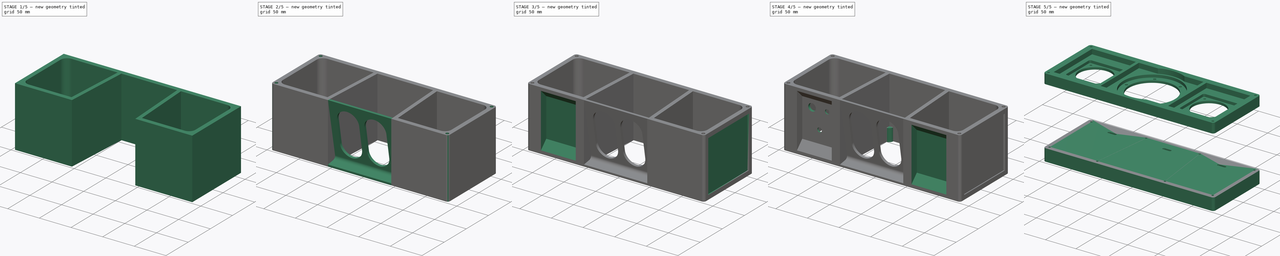
[diagram: build sequence overview — one tinted view per stage of 5, left to right]
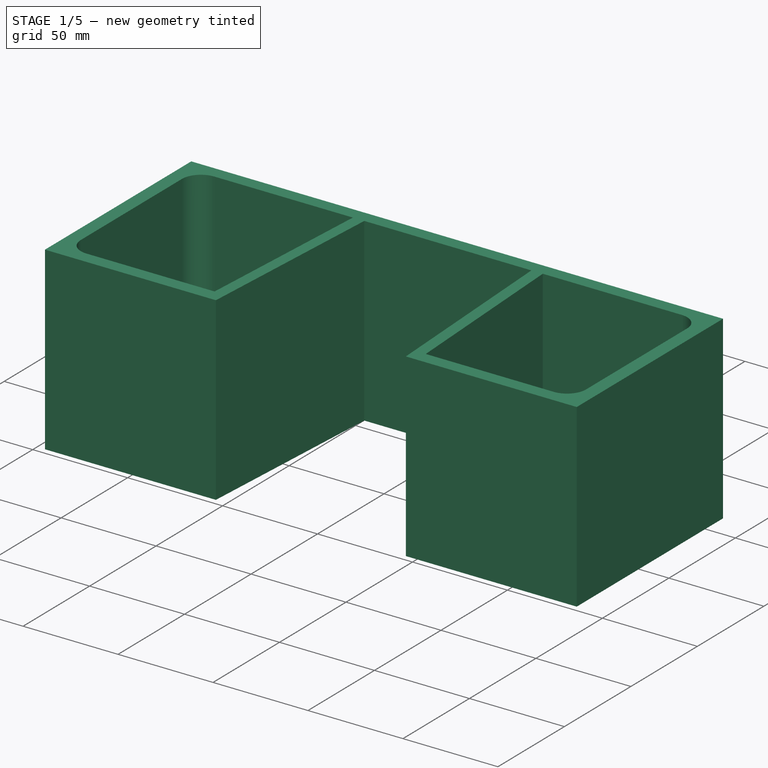
[diagram: stage 1 of 5 — iso view after this stage's code; geometry added in this stage tinted green]
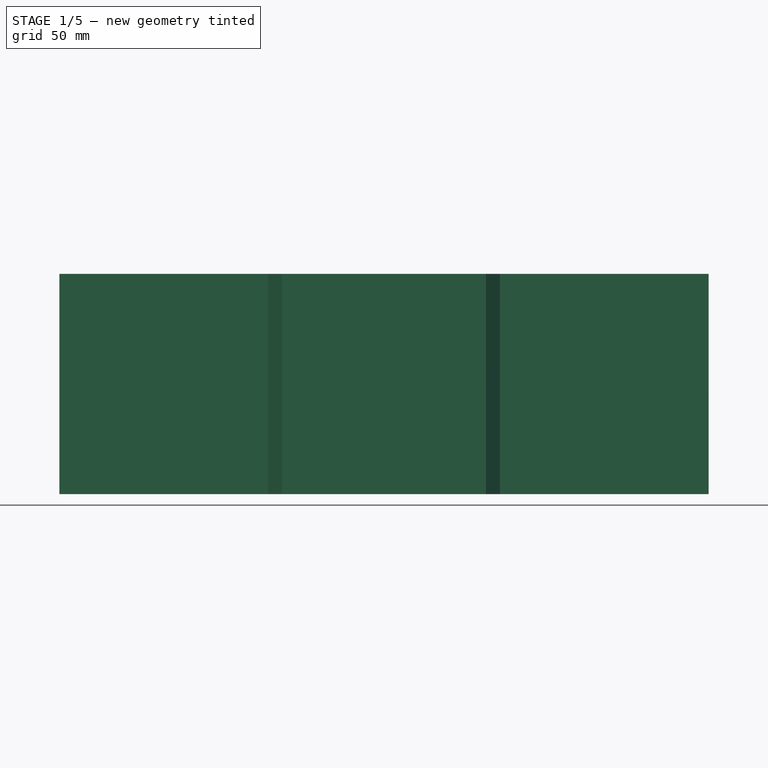
[diagram: stage 1 of 5 — front view after this stage's code; geometry added in this stage tinted green]
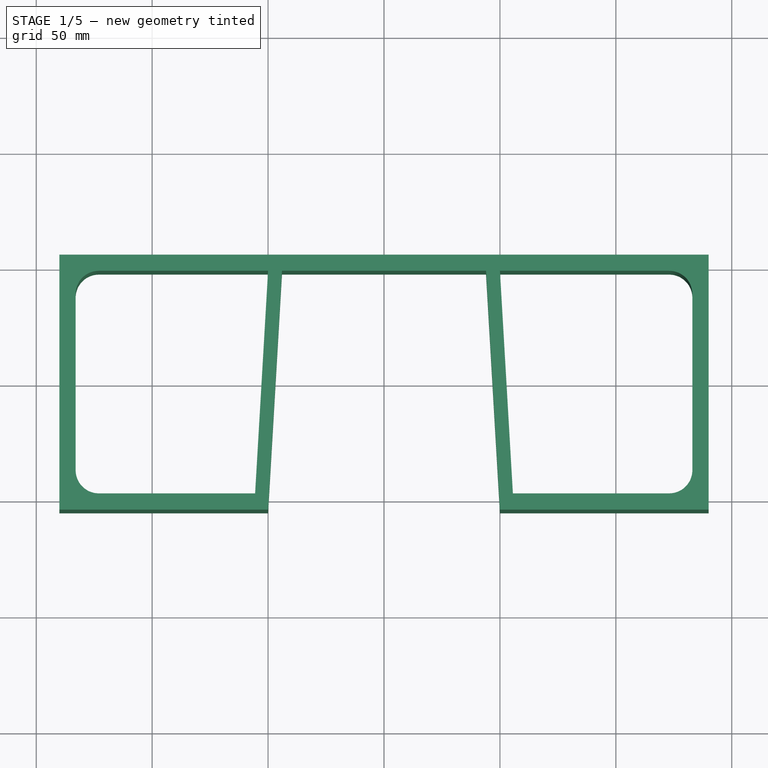
[diagram: stage 1 of 5 — top view after this stage's code; geometry added in this stage tinted green]
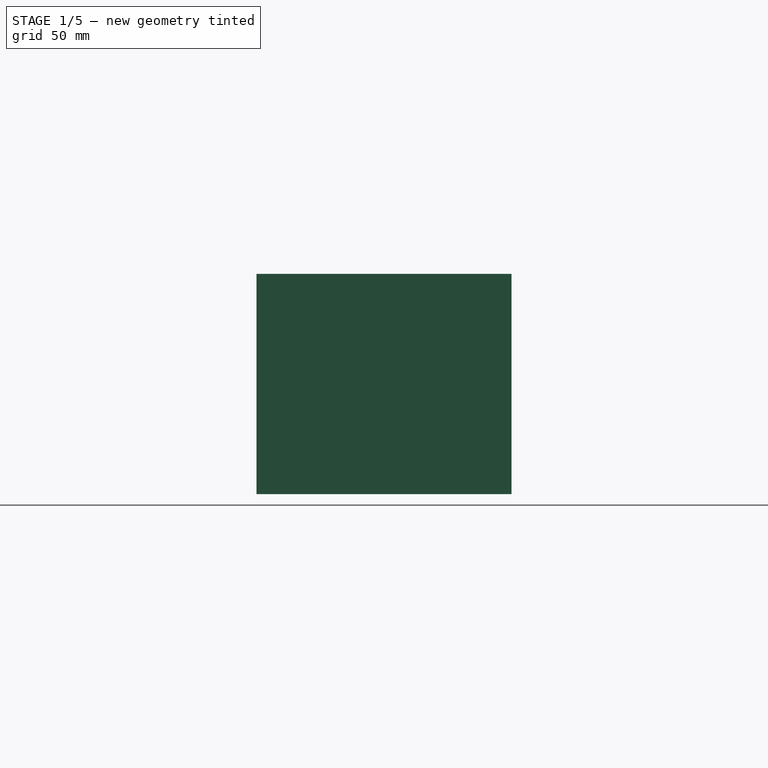
[diagram: stage 1 of 5 — right view after this stage's code; geometry added in this stage tinted green]
FCSTD DOCUMENT  (FreeCAD 0.19R24276 (Git))
Label: boombox_v1
License: All rights reserved
LicenseURL: http://en.wikipedia.org/wiki/All_rights_reserved
objects: Sketcher::SketchObject×26, PartDesign::Pocket×16, PartDesign::Pad×10, PartDesign::Fillet×4, PartDesign::Body×4, PartDesign::ShapeBinder×3, PartDesign::Mirrored×3, PartDesign::Draft×2, PartDesign::PolarPattern×1
note: 101 computed .brp shape members not serialized (recipe doc carries the construction recipe); baked Part::Feature solids carry a one-line shape summary decoded from their .brp

FEATURE [Sketcher::SketchObject] Sketch
  FullyConstrained = true
  MapMode = 5
  Support = -> [XY_Plane]
  sketch-geometry (33):
    g0: Circle CenterX=0 CenterY=0 CenterZ=0 NormalX=0 NormalY=0 NormalZ=1 AngleXU=0 Radius=37.75
    g1: Circle CenterX=93.5 CenterY=0 CenterZ=0 NormalX=0 NormalY=0 NormalZ=1 AngleXU=0 Radius=26.25
    g2: Circle CenterX=-93.5 CenterY=0 CenterZ=0 NormalX=0 NormalY=0 NormalZ=1 AngleXU=0 Radius=26.25
    g3: Circle CenterX=0 CenterY=0 CenterZ=0 NormalX=0 NormalY=0 NormalZ=1 AngleXU=0 Radius=47
    g4: LineSegment StartX=64.75 StartY=28.75 StartZ=0 EndX=122.25 EndY=28.75 EndZ=0
    g5: LineSegment StartX=122.25 StartY=28.75 StartZ=0 EndX=122.25 EndY=-28.75 EndZ=0
    g6: LineSegment StartX=122.25 StartY=-28.75 StartZ=0 EndX=64.75 EndY=-28.75 EndZ=0
    g7: LineSegment StartX=64.75 StartY=-28.75 StartZ=0 EndX=64.75 EndY=28.75 EndZ=0
    g8: LineSegment StartX=-122.25 StartY=28.75 StartZ=0 EndX=-64.75 EndY=28.75 EndZ=0
    g9: LineSegment StartX=-64.75 StartY=28.75 StartZ=0 EndX=-64.75 EndY=-28.75 EndZ=0
    g10: LineSegment StartX=-64.75 StartY=-28.75 StartZ=0 EndX=-122.25 EndY=-28.75 EndZ=0
    g11: LineSegment StartX=-122.25 StartY=-28.75 StartZ=0 EndX=-122.25 EndY=28.75 EndZ=0
    g12: LineSegment StartX=-140 StartY=55 StartZ=0 EndX=140 EndY=55 EndZ=0
    g13: LineSegment StartX=140 StartY=55 StartZ=0 EndX=140 EndY=-55 EndZ=0
    g14: LineSegment StartX=140 StartY=-55 StartZ=0 EndX=-140 EndY=-55 EndZ=0
    g15: LineSegment StartX=-140 StartY=-55 StartZ=0 EndX=-140 EndY=55 EndZ=0
    g16: GeomPoint X=140 Y=0 Z=0
    g17: GeomPoint X=47 Y=0 Z=0
    g18: Circle CenterX=93.5 CenterY=0 CenterZ=0 NormalX=0 NormalY=0 NormalZ=1 AngleXU=0 Radius=32.55
    g19: Circle CenterX=-93.5 CenterY=0 CenterZ=0 NormalX=0 NormalY=0 NormalZ=1 AngleXU=0 Radius=32.55
    g20: LineSegment StartX=64.75 StartY=28.75 StartZ=0 EndX=122.25 EndY=-28.75 EndZ=0
    g21: LineSegment StartX=64.75 StartY=-28.75 StartZ=0 EndX=122.25 EndY=28.75 EndZ=0
    g22: Circle CenterX=116.516 CenterY=-23.0163 CenterZ=0 NormalX=0 NormalY=0 NormalZ=1 AngleXU=0 Radius=1.75
    g23: Circle CenterX=116.516 CenterY=23.0163 CenterZ=0 NormalX=0 NormalY=0 NormalZ=1 AngleXU=0 Radius=1.75
    g24: Circle CenterX=70.4837 CenterY=23.0163 CenterZ=0 NormalX=0 NormalY=0 NormalZ=1 AngleXU=0 Radius=1.75
    g25: Circle CenterX=70.4837 CenterY=-23.0163 CenterZ=0 NormalX=0 NormalY=0 NormalZ=1 AngleXU=0 Radius=1.75
    g26: LineSegment StartX=-122.25 StartY=28.75 StartZ=0 EndX=-64.75 EndY=-28.75 EndZ=0
    g27: LineSegment StartX=-122.25 StartY=-28.75 StartZ=0 EndX=-64.75 EndY=28.75 EndZ=0
    g28: Circle CenterX=-116.516 CenterY=23.0163 CenterZ=0 NormalX=0 NormalY=0 NormalZ=1 AngleXU=0 Radius=1.75
    g29: Circle CenterX=-70.4837 CenterY=23.0163 CenterZ=0 NormalX=0 NormalY=0 NormalZ=1 AngleXU=0 Radius=1.75
    g30: Circle CenterX=-70.4837 CenterY=-23.0163 CenterZ=0 NormalX=0 NormalY=0 NormalZ=1 AngleXU=0 Radius=1.75
    g31: Circle CenterX=-116.516 CenterY=-23.0163 CenterZ=0 NormalX=0 NormalY=0 NormalZ=1 AngleXU=0 Radius=1.75
    g32: Circle CenterX=0 CenterY=0 CenterZ=0 NormalX=0 NormalY=0 NormalZ=1 AngleXU=0 Radius=42
  constraints (83):
    c: Coincident(g0,g-1)
    c: Diameter(g0) = 75.5
    c: Equal(g1,g2)
    c: Diameter(g1) = 52.5
    c: Symmetric(g2,g1,g0)
    c: Diameter(g3) = 94
    c: Coincident(g4,g5)
    c: Coincident(g5,g6)
    c: Coincident(g6,g7)
    c: Coincident(g7,g4)
    c: Horizontal(g4)
    c: Horizontal(g6)
    c: Vertical(g5)
    c: Vertical(g7)
    c: Coincident(g8,g9)
    c: Coincident(g9,g10)
    c: Coincident(g10,g11)
    c: Coincident(g11,g8)
    c: Horizontal(g8)
    c: Horizontal(g10)
    c: Vertical(g9)
    c: Vertical(g11)
    c: Equal(g4,g7)
    c: Equal(g8,g9)
    c: Equal(g10,g6)
    c: Symmetric(g4,g5,g1)
    c: Symmetric(g8,g9,g2)
    c: DistanceX(g4,g4) = 57.5
    c: Coincident(g3,g0)
    c: Coincident(g12,g13)
    c: Coincident(g13,g14)
    c: Coincident(g14,g15)
    c: Coincident(g15,g12)
    c: Horizontal(g12)
    c: Horizontal(g14)
    c: Vertical(g13)
    c: Vertical(g15)
    c: Symmetric(g12,g13,g0)
    c: DistanceY(g13,g13) = 110
    c: DistanceX(g14,g14) = 280
    c: PointOnObject(g16,g13)
    c: PointOnObject(g16,g-1)
    c: PointOnObject(g17,g3)
    c: PointOnObject(g17,g-1)
    c: Symmetric(g17,g16,g1)
    c: Coincident(g18,g1)
    c: Coincident(g19,g2)
    c: Equal(g18,g19)
    c: Diameter(g18) = 65.1
    c: Coincident(g20,g4)
    c: Coincident(g20,g5)
    c: Coincident(g21,g6)
    c: Coincident(g21,g4)
    c: PointOnObject(g22,g18)
    c: PointOnObject(g23,g18)
    c: PointOnObject(g24,g18)
    c: PointOnObject(g24,g20)
    c: PointOnObject(g22,g20)
    c: PointOnObject(g23,g21)
    c: PointOnObject(g25,g21)
    c: PointOnObject(g25,g18)
    c: Equal(g23,g22)
    c: Equal(g22,g25)
    c: Equal(g25,g24)
    c: Diameter(g25) = 3.5
    c: Coincident(g26,g8)
    c: Coincident(g26,g9)
    c: Coincident(g27,g10)
    c: Coincident(g27,g8)
    c: PointOnObject(g28,g26)
    c: PointOnObject(g29,g27)
    c: PointOnObject(g30,g26)
    c: PointOnObject(g31,g27)
    c: PointOnObject(g31,g19)
    c: PointOnObject(g28,g19)
    c: PointOnObject(g29,g19)
    c: PointOnObject(g30,g19)
    c: Equal(g28,g29)
    c: Equal(g29,g30)
    c: Equal(g30,g31)
    c: Equal(g31,g24)
    c: Coincident(g32,g0)
    c: Diameter(g32) = 84
FEATURE [PartDesign::Pad] Pad  label="plate"
  Direction = (1,1,1)
  Length = 8
  Length2 = 100
  Profile = -> Sketch
  Type = 0
FEATURE [Sketcher::SketchObject] Sketch001
  FullyConstrained = true
  MapMode = 5
  Placement = pos=(0,0,8) rot=(0,0,1;0rad)
  Support = -> [Pad]
  sketch-geometry (2):
    g0: Circle CenterX=0 CenterY=0 CenterZ=0 NormalX=0 NormalY=0 NormalZ=1 AngleXU=0 Radius=42
    g1: Circle CenterX=42 CenterY=0 CenterZ=0 NormalX=0 NormalY=0 NormalZ=1 AngleXU=0 Radius=2.1
  constraints (5):
    c: Coincident(g0,g-1)
    c: Diameter(g0) = 84
    c: PointOnObject(g1,g0)
    c: PointOnObject(g1,g-1)
    c: Diameter(g1) = 4.2
FEATURE [PartDesign::Pocket] Pocket  label="screw hole sub"
  BaseFeature = -> Pad
  Length = 0
  Length2 = 100
  Profile = -> Sketch001
  Type = 3
  UpToFace = -> Pad [Face16]
FEATURE [PartDesign::PolarPattern] PolarPattern  label="screw holes sub"
  Angle = 360
  Axis = -> Sketch001 [N_Axis]
  BaseFeature = -> Pocket
  Occurrences = 6
  Originals = -> [Pocket]
FEATURE [Sketcher::SketchObject] Sketch002
  ExternalGeometry = -> [PolarPattern]
  FullyConstrained = true
  MapMode = 5
  Placement = pos=(0,0,8) rot=(0,0,1;0rad)
  Support = -> [PolarPattern]
  sketch-geometry (2):
    g0: Circle CenterX=0 CenterY=0 CenterZ=0 NormalX=0 NormalY=0 NormalZ=1 AngleXU=0 Radius=47
    g1: Circle CenterX=0 CenterY=0 CenterZ=0 NormalX=0 NormalY=0 NormalZ=1 AngleXU=0 Radius=37.75
  constraints (4):
    c: Coincident(g0,g-1)
    c: Coincident(g1,g-1)
    c: Equal(g1,g-3)
    c: Diameter(g0) = 94
FEATURE [PartDesign::Pocket] Pocket001  label="recess sub"
  BaseFeature = -> PolarPattern
  Length = 4.5
  Length2 = 100
  Profile = -> Sketch002
  Type = 0
FEATURE [Sketcher::SketchObject] Sketch003
  ExternalGeometry = -> [Pocket001]
  FullyConstrained = true
  MapMode = 5
  Placement = pos=(0,0,8) rot=(0,0,1;0rad)
  Support = -> [Pocket001]
  sketch-geometry (18):
    g0: LineSegment StartX=-119.25 StartY=28.75 StartZ=0 EndX=-67.75 EndY=28.75 EndZ=0
    g1: LineSegment StartX=-64.75 StartY=25.75 StartZ=0 EndX=-64.75 EndY=-25.75 EndZ=0
    g2: LineSegment StartX=-67.75 StartY=-28.75 StartZ=0 EndX=-119.25 EndY=-28.75 EndZ=0
    g3: LineSegment StartX=-122.25 StartY=-25.75 StartZ=0 EndX=-122.25 EndY=25.75 EndZ=0
    g4: LineSegment StartX=67.75 StartY=28.75 StartZ=0 EndX=119.25 EndY=28.75 EndZ=0
    g5: LineSegment StartX=122.25 StartY=25.75 StartZ=0 EndX=122.25 EndY=-25.75 EndZ=0
    g6: LineSegment StartX=119.25 StartY=-28.75 StartZ=0 EndX=67.75 EndY=-28.75 EndZ=0
    g7: LineSegment StartX=64.75 StartY=-25.75 StartZ=0 EndX=64.75 EndY=25.75 EndZ=0
    g8: Circle CenterX=93.5 CenterY=0 CenterZ=0 NormalX=0 NormalY=0 NormalZ=1 AngleXU=0 Radius=26.25
    g9: Circle CenterX=-93.5 CenterY=0 CenterZ=0 NormalX=0 NormalY=0 NormalZ=1 AngleXU=0 Radius=26.25
    g10: ArcOfCircle CenterX=67.75 CenterY=25.75 CenterZ=0 NormalX=0 NormalY=0 NormalZ=1 AngleXU=0 Radius=3 StartAngle=1.5708 EndAngle=3.14159
    g11: ArcOfCircle CenterX=119.25 CenterY=25.75 CenterZ=0 NormalX=0 NormalY=0 NormalZ=1 AngleXU=0 Radius=3 StartAngle=2.3e-15 EndAngle=1.5708
    g12: ArcOfCircle CenterX=119.25 CenterY=-25.75 CenterZ=0 NormalX=0 NormalY=0 NormalZ=1 AngleXU=0 Radius=3 StartAngle=4.71239 EndAngle=6.28319
    g13: ArcOfCircle CenterX=67.75 CenterY=-25.75 CenterZ=0 NormalX=0 NormalY=0 NormalZ=1 AngleXU=0 Radius=3 StartAngle=3.14159 EndAngle=4.71239
    g14: ArcOfCircle CenterX=-119.25 CenterY=25.75 CenterZ=0 NormalX=0 NormalY=0 NormalZ=1 AngleXU=0 Radius=3 StartAngle=1.5708 EndAngle=3.14159
    g15: ArcOfCircle CenterX=-67.75 CenterY=25.75 CenterZ=0 NormalX=0 NormalY=0 NormalZ=1 AngleXU=0 Radius=3 StartAngle=2.3e-15 EndAngle=1.5708
    g16: ArcOfCircle CenterX=-67.75 CenterY=-25.75 CenterZ=0 NormalX=0 NormalY=0 NormalZ=1 AngleXU=0 Radius=3 StartAngle=4.71239 EndAngle=6.28319
    g17: ArcOfCircle CenterX=-119.25 CenterY=-25.75 CenterZ=0 NormalX=0 NormalY=0 NormalZ=1 AngleXU=0 Radius=3 StartAngle=3.14159 EndAngle=4.71239
  constraints (42):
    c: Horizontal(g0)
    c: Horizontal(g2)
    c: Vertical(g1)
    c: Vertical(g3)
    c: Horizontal(g4)
    c: Horizontal(g6)
    c: Vertical(g5)
    c: Vertical(g7)
    c: Coincident(g8,g-3)
    c: Coincident(g9,g-4)
    c: Equal(g8,g-3)
    c: Equal(g9,g-4)
    c: Equal(g4,g5)
    c: Equal(g0,g3)
    c: Equal(g2,g6)
    c: Tangent(g4,g10) = 1.5708
    c: Tangent(g7,g10) = 1.5708
    c: Tangent(g4,g11) = 1.5708
    c: Tangent(g5,g11) = 1.5708
    c: Tangent(g6,g12) = 1.5708
    c: Tangent(g5,g12) = 1.5708
    c: Tangent(g7,g13) = 1.5708
    c: Tangent(g6,g13) = 1.5708
    c: Tangent(g0,g14) = 1.5708
    c: Tangent(g3,g14) = 1.5708
    c: Tangent(g0,g15) = 1.5708
    c: Tangent(g1,g15) = 1.5708
    c: Tangent(g2,g16) = 1.5708
    c: Tangent(g1,g16) = 1.5708
    c: Tangent(g3,g17) = 1.5708
    c: Tangent(g2,g17) = 1.5708
    c: Equal(g17,g14)
    c: Equal(g15,g14)
    c: Equal(g15,g16)
    c: Equal(g15,g10)
    c: Equal(g10,g11)
    c: Equal(g11,g12)
    c: Equal(g12,g13)
    c: DistanceX(g3,g1) = 57.5
    c: Symmetric(g10,g12,g8)
    c: Symmetric(g14,g16,g9)
    c: Radius(g12) = 3
FEATURE [PartDesign::Pocket] Pocket002  label="recess bb"
  BaseFeature = -> Pocket001
  Length = 4.3
  Length2 = 100
  Profile = -> Sketch003
  Type = 0
FEATURE [Sketcher::SketchObject] Sketch004
  ExternalGeometry = -> [Pocket002]
  FullyConstrained = true
  MapMode = 5
  Placement = pos=(0,0,8) rot=(0,0,1;0rad)
  Support = -> [Pocket002]
  sketch-geometry (8):
    g0: LineSegment StartX=-140 StartY=50 StartZ=0 EndX=140 EndY=50 EndZ=0
    g1: LineSegment StartX=-140 StartY=-50 StartZ=0 EndX=140 EndY=-50 EndZ=0
    g2: LineSegment StartX=135 StartY=-55 StartZ=0 EndX=135 EndY=55 EndZ=0
    g3: LineSegment StartX=-135 StartY=-55 StartZ=0 EndX=-135 EndY=55 EndZ=0
    g4: Circle CenterX=-135 CenterY=50 CenterZ=0 NormalX=0 NormalY=0 NormalZ=1 AngleXU=0 Radius=1.75
    g5: Circle CenterX=-135 CenterY=-50 CenterZ=0 NormalX=0 NormalY=0 NormalZ=1 AngleXU=0 Radius=1.75
    g6: Circle CenterX=135 CenterY=-50 CenterZ=0 NormalX=0 NormalY=0 NormalZ=1 AngleXU=0 Radius=1.75
    g7: Circle CenterX=135 CenterY=50 CenterZ=0 NormalX=0 NormalY=0 NormalZ=1 AngleXU=0 Radius=1.75
  constraints (28):
    c: PointOnObject(g0,g-4)
    c: PointOnObject(g0,g-6)
    c: Horizontal(g0)
    c: PointOnObject(g1,g-4)
    c: PointOnObject(g1,g-6)
    c: Horizontal(g1)
    c: PointOnObject(g2,g-5)
    c: PointOnObject(g2,g-3)
    c: Vertical(g2)
    c: PointOnObject(g3,g-5)
    c: PointOnObject(g3,g-3)
    c: Vertical(g3)
    c: DistanceX(g2,g-6) = 5
    c: DistanceX(g-4,g3) = 5
    c: DistanceY(g0,g-6) = 5
    c: DistanceY(g-5,g1) = 5
    c: PointOnObject(g4,g0)
    c: PointOnObject(g5,g1)
    c: PointOnObject(g6,g1)
    c: PointOnObject(g7,g2)
    c: PointOnObject(g7,g0)
    c: PointOnObject(g6,g2)
    c: PointOnObject(g5,g3)
    c: PointOnObject(g4,g3)
    c: Equal(g4,g7)
    c: Equal(g7,g6)
    c: Equal(g4,g5)
    c: Diameter(g7) = 3.5
FEATURE [PartDesign::Pocket] Pocket003  label="screw holes corners"
  BaseFeature = -> Pocket002
  Length = 0
  Length2 = 100
  Profile = -> Sketch004
  Type = 3
  UpToFace = -> Pocket002 [Face4]
FEATURE [PartDesign::ShapeBinder] ShapeBinder001
  Support = -> [Pocket003]
  TraceSupport = false
FEATURE [Sketcher::SketchObject] Sketch006
  ExternalGeometry = -> [ShapeBinder001]
  FullyConstrained = true
  MapMode = 5
  Placement = pos=(0,0,0) rot=(1,0,0;3.14159rad)
  Support = -> [ShapeBinder001]
  sketch-geometry (25):
    g0: LineSegment StartX=140 StartY=55 StartZ=0 EndX=140 EndY=-55 EndZ=0
    g1: LineSegment StartX=140 StartY=-55 StartZ=0 EndX=-140 EndY=-55 EndZ=0
    g2: LineSegment StartX=-140 StartY=-55 StartZ=0 EndX=-140 EndY=55 EndZ=0
    g3: LineSegment StartX=-140 StartY=55 StartZ=0 EndX=-50 EndY=55 EndZ=0
    g4: LineSegment StartX=140 StartY=55 StartZ=0 EndX=50 EndY=55 EndZ=0
    g5: GeomPoint X=0 Y=55 Z=0
    g6: LineSegment StartX=-133 StartY=38 StartZ=0 EndX=-133 EndY=-38 EndZ=0
    g7: LineSegment StartX=133 StartY=-38 StartZ=0 EndX=133 EndY=38 EndZ=0
    g8: ArcOfCircle CenterX=-123 CenterY=38 CenterZ=0 NormalX=0 NormalY=0 NormalZ=1 AngleXU=0 Radius=10 StartAngle=1.5708 EndAngle=3.14159
    g9: ArcOfCircle CenterX=123 CenterY=38 CenterZ=0 NormalX=0 NormalY=0 NormalZ=1 AngleXU=0 Radius=10 StartAngle=3.448e-13 EndAngle=1.5708
    g10: ArcOfCircle CenterX=123 CenterY=-38 CenterZ=0 NormalX=0 NormalY=0 NormalZ=1 AngleXU=0 Radius=10 StartAngle=4.71239 EndAngle=6.28319
    g11: ArcOfCircle CenterX=-123 CenterY=-38 CenterZ=0 NormalX=0 NormalY=0 NormalZ=1 AngleXU=0 Radius=10 StartAngle=3.14159 EndAngle=4.71239
    g12: LineSegment StartX=44 StartY=-48 StartZ=0 EndX=-44 EndY=-48 EndZ=0
    g13: LineSegment StartX=123 StartY=-48 StartZ=0 EndX=50 EndY=-48 EndZ=0
    g14: LineSegment StartX=-123 StartY=-48 StartZ=0 EndX=-50 EndY=-48 EndZ=0
    g15: LineSegment StartX=50 StartY=-48 StartZ=0 EndX=55.5922 EndY=48 EndZ=0
    g16: LineSegment StartX=-50 StartY=-48 StartZ=0 EndX=-55.5922 EndY=48 EndZ=0
    g17: LineSegment StartX=-55.5922 StartY=48 StartZ=0 EndX=-123 EndY=48 EndZ=0
    g18: LineSegment StartX=55.5922 StartY=48 StartZ=0 EndX=123 EndY=48 EndZ=0
    g19: LineSegment StartX=123 StartY=-48 StartZ=0 EndX=123 EndY=-55 EndZ=0
    g20: LineSegment StartX=123 StartY=48 StartZ=0 EndX=123 EndY=55 EndZ=0
    g21: LineSegment StartX=133 StartY=38 StartZ=0 EndX=140 EndY=38 EndZ=0
    g22: LineSegment StartX=-133 StartY=38 StartZ=0 EndX=-140 EndY=38 EndZ=0
    g23: LineSegment StartX=-50 StartY=55 StartZ=0 EndX=-44 EndY=-48 EndZ=0
    g24: LineSegment StartX=50 StartY=55 StartZ=0 EndX=44 EndY=-48 EndZ=0
  constraints (69):
    c: Coincident(g0,g-4)
    c: Coincident(g0,g-5)
    c: Coincident(g1,g0)
    c: Coincident(g1,g-6)
    c: Coincident(g2,g1)
    c: Coincident(g2,g-6)
    c: Coincident(g3,g2)
    c: Coincident(g4,g0)
    c: PointOnObject(g5,g-3)
    c: PointOnObject(g5,g-2)
    c: Symmetric(g3,g4,g5)
    c: DistanceX(g3,g4) = 100
    c: Horizontal(g4)
    c: Vertical(g6)
    c: Vertical(g7)
    c: Tangent(g6,g8) = -1.5708
    c: Tangent(g7,g9) = -1.5708
    c: Tangent(g7,g10) = -1.5708
    c: Tangent(g6,g11) = -1.5708
    c: Equal(g9,g10)
    c: Equal(g10,g11)
    c: Equal(g11,g8)
    c: Horizontal(g12)
    c: Coincident(g13,g10)
    c: Horizontal(g13)
    c: Coincident(g14,g11)
    c: Horizontal(g14)
    c: Coincident(g15,g13)
    c: Coincident(g16,g14)
    c: Coincident(g17,g16)
    c: Coincident(g17,g8)
    c: Horizontal(g17)
    c: Coincident(g18,g15)
    c: Coincident(g18,g9)
    c: Horizontal(g18)
    c: DistanceY(g13,g12) = 0
    c: DistanceY(g12,g14) = 0
    c: Coincident(g19,g10)
    c: PointOnObject(g19,g1)
    c: Vertical(g19)
    c: Coincident(g20,g9)
    c: PointOnObject(g20,g4)
    c: Vertical(g20)
    c: Equal(g20,g19)
    c: Coincident(g21,g7)
    c: PointOnObject(g21,g0)
    c: Horizontal(g21)
    c: Equal(g21,g20)
    c: Coincident(g22,g6)
    c: PointOnObject(g22,g2)
    c: Horizontal(g22)
    c: Equal(g21,g22)
    c: Radius(g8) = 10
    c: DistanceX(g8,g8) = 0
    c: DistanceX(g11,g11) = 0
    c: DistanceX(g10,g10) = 0
    c: DistanceX(g9,g9) = 0
    c: DistanceX(g21,g21) = 7
    c: DistanceX(g12,g13) = 6
    c: DistanceX(g14,g12) = 6
    c: Coincident(g23,g3)
    c: Coincident(g23,g12)
    c: Coincident(g24,g4)
    c: Coincident(g24,g12)
    c: Parallel(g24,g15)
    c: Parallel(g16,g23)
    c: DistanceX(g12,g12) = 88
    c: Equal(g13,g14)
    c: DistanceY(g15,g16) = 0
FEATURE [PartDesign::Pad] Pad002  label="outer frame"
  Direction = (1,1,1)
  Length = 95
  Length2 = 100
  Profile = -> Sketch006
  Type = 0
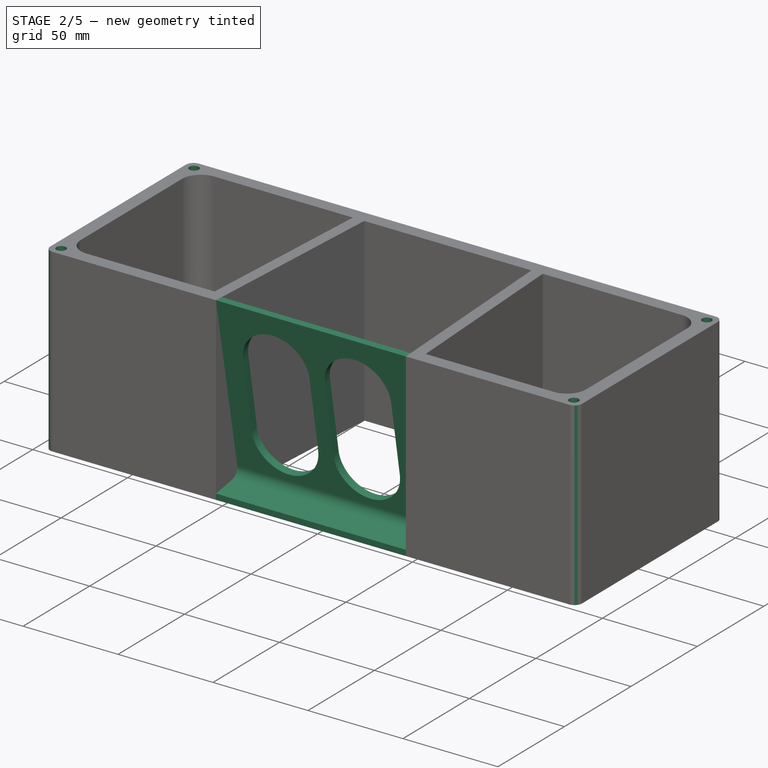
[diagram: stage 2 of 5 — iso view after this stage's code; geometry added in this stage tinted green]
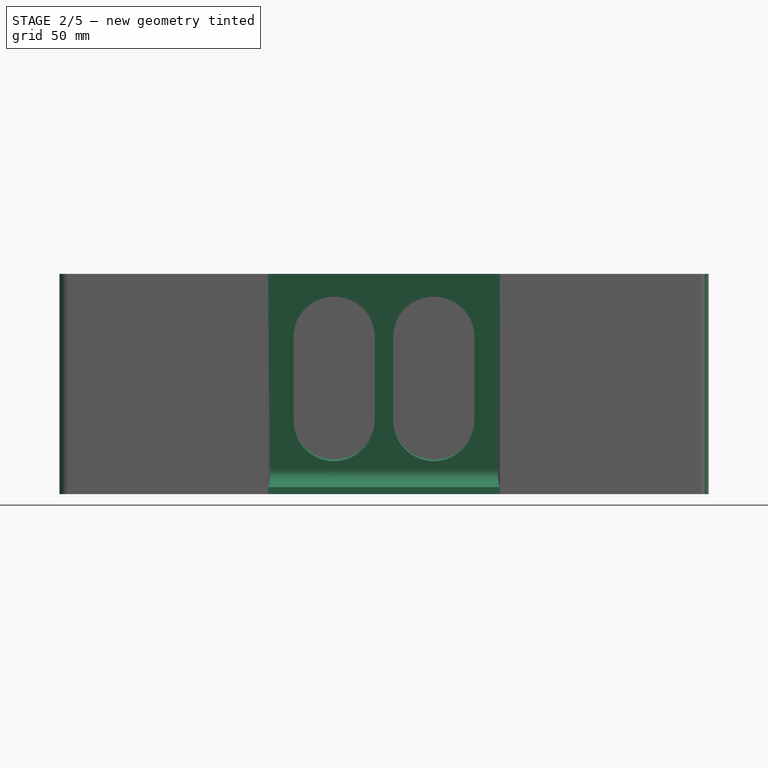
[diagram: stage 2 of 5 — front view after this stage's code; geometry added in this stage tinted green]
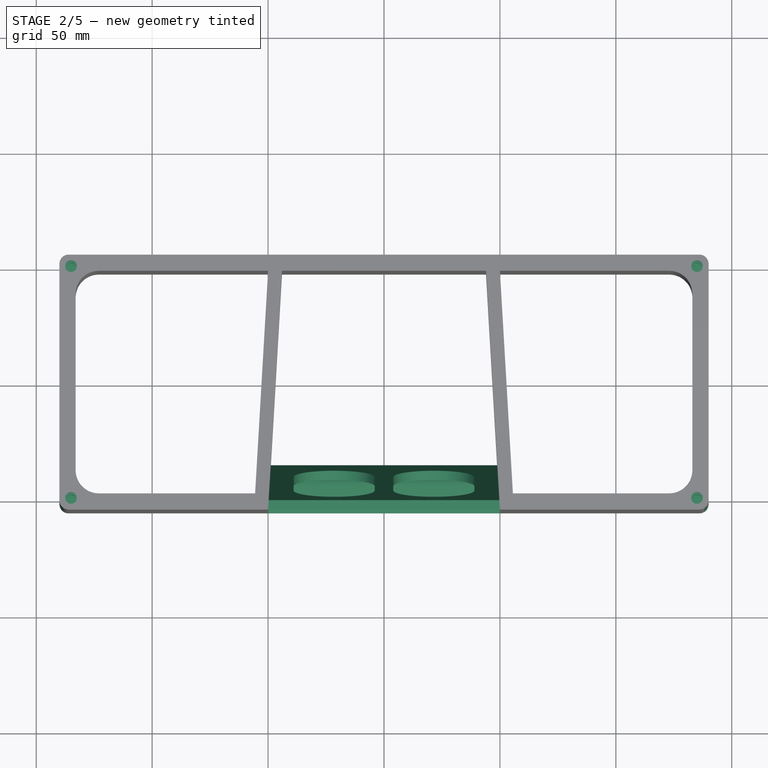
[diagram: stage 2 of 5 — top view after this stage's code; geometry added in this stage tinted green]
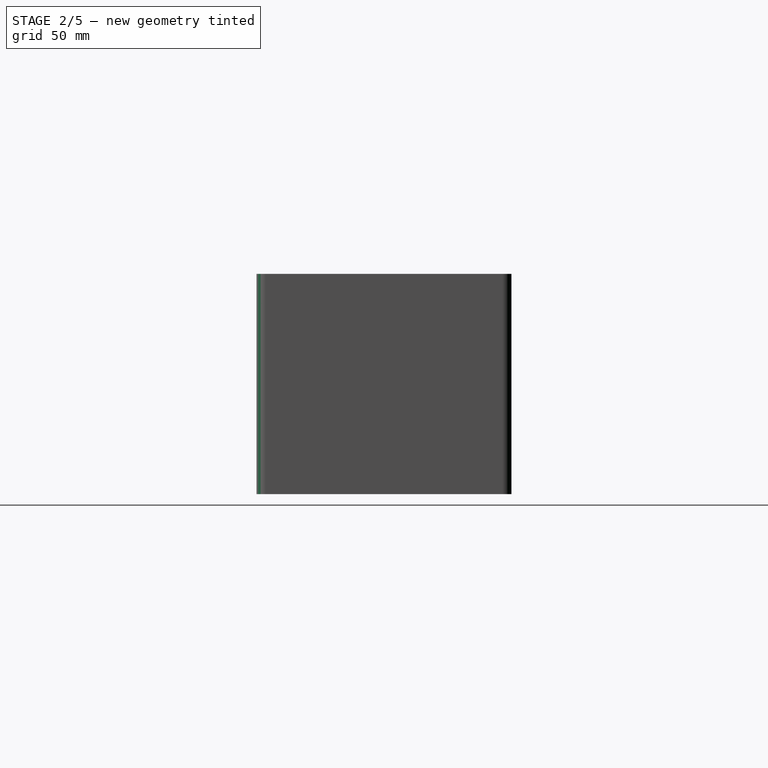
[diagram: stage 2 of 5 — right view after this stage's code; geometry added in this stage tinted green]
FEATURE [Sketcher::SketchObject] Sketch007
  ExternalGeometry = -> [Pad002]
  FullyConstrained = true
  MapMode = 5
  Placement = pos=(46.6379,2.71677,0) rot=(0.599742,-0.565822,-0.565822;2.06113rad)
  Support = -> [Pad002]
  sketch-geometry (7):
    g0: LineSegment StartX=57.8146 StartY=6e-15 StartZ=0 EndX=42.1863 EndY=-88.6327 EndZ=0
    g1: LineSegment StartX=57.8146 StartY=-95 StartZ=0 EndX=37.0018 EndY=-95 EndZ=0
    g2: LineSegment StartX=37.0018 StartY=-95 StartZ=0 EndX=53.7529 EndY=0 EndZ=0
    g3: LineSegment StartX=53.7529 StartY=0 StartZ=0 EndX=57.8146 EndY=6e-15 EndZ=0
    g4: LineSegment StartX=42.1863 StartY=-88.6327 StartZ=0 EndX=38.247 EndY=-87.9381 EndZ=0
    g5: LineSegment StartX=57.8146 StartY=-95 StartZ=0 EndX=57.8146 EndY=-92 EndZ=0
    g6: LineSegment StartX=57.8146 StartY=-92 StartZ=0 EndX=42.1863 EndY=-88.6327 EndZ=0
  constraints (19):
    c: Coincident(g3,g2)
    c: Coincident(g3,g0)
    c: Coincident(g0,g-6)
    c: Parallel(g0,g2)
    c: PointOnObject(g2,g-6)
    c: PointOnObject(g1,g-4)
    c: Coincident(g4,g0)
    c: Perpendicular(g2,g4)
    c: PointOnObject(g4,g2)
    c: Distance(g4) = 4
    c: Angle(g0,g-3) = 0.174533
    c: Distance(g0) = 90
    c: Coincident(g2,g1)
    c: Coincident(g5,g1)
    c: PointOnObject(g6,g-3)
    c: Coincident(g6,g0)
    c: Coincident(g1,g-4)
    c: Coincident(g6,g5)
    c: DistanceY(g5,g5) = 3
FEATURE [PartDesign::Pad] Pad003  label="top slope"
  BaseFeature = -> Pad002
  Direction = (1,0,0)
  Length = 10
  Length2 = 100
  Profile = -> Sketch007
  Type = 3
  UpToFace = -> Pad002 [Face6]
  UseCustomVector = true
FEATURE [PartDesign::Fillet] Fillet  label="fillet outer corners"
  Base = -> Pad003 [Edge59,Edge54,Edge6,Edge1]
  BaseFeature = -> Pad003
  Radius = 4
  SupportTransform = false
FEATURE [PartDesign::Body] Body  label="front plate"
  Group = -> [Sketch,Pad,Sketch001,Pocket,PolarPattern,Sketch002,Pocket001,Sketch003,Pocket002,Sketch004,Pocket003,Fillet002]
  Origin = -> Origin
  Tip = -> Fillet002
FEATURE [Sketcher::SketchObject] Sketch008
  ExternalGeometry = -> [Fillet]
  FullyConstrained = true
  MapMode = 5
  Placement = pos=(0,-53.347,-9.39059) rot=(1,0,0;1.74504rad)
  Support = -> [Fillet]
  sketch-geometry (13):
    g0: ArcOfCircle CenterX=21.5 CenterY=-54.9604 CenterZ=0 NormalX=0 NormalY=0 NormalZ=1 AngleXU=0 Radius=17.5 StartAngle=3.14159 EndAngle=6.28319
    g1: ArcOfCircle CenterX=21.5 CenterY=-17.9604 CenterZ=0 NormalX=0 NormalY=0 NormalZ=1 AngleXU=0 Radius=17.5 StartAngle=0 EndAngle=3.14159
    g2: LineSegment StartX=39 StartY=-54.9604 StartZ=0 EndX=39 EndY=-17.9604 EndZ=0
    g3: LineSegment StartX=4 StartY=-54.9604 StartZ=0 EndX=4 EndY=-17.9604 EndZ=0
    g4: ArcOfCircle CenterX=-21.5 CenterY=-54.9604 CenterZ=0 NormalX=0 NormalY=0 NormalZ=1 AngleXU=0 Radius=17.5 StartAngle=3.14159 EndAngle=6.28319
    g5: ArcOfCircle CenterX=-21.5 CenterY=-17.9604 CenterZ=0 NormalX=0 NormalY=0 NormalZ=1 AngleXU=0 Radius=17.5 StartAngle=0 EndAngle=3.14159
    g6: LineSegment StartX=-4 StartY=-54.9604 StartZ=0 EndX=-4 EndY=-17.9604 EndZ=0
    g7: LineSegment StartX=-39 StartY=-54.9604 StartZ=0 EndX=-39 EndY=-17.9604 EndZ=0
    g8: GeomPoint X=21.5 Y=-72.4604 Z=0
    g9: GeomPoint X=21.5 Y=-0.460438 Z=0
    g10: LineSegment StartX=21.5 StartY=-72.4604 StartZ=0 EndX=21.5 EndY=-80.4604 EndZ=0
    g11: LineSegment StartX=4 StartY=-54.9604 StartZ=0 EndX=-4 EndY=-54.9604 EndZ=0
    g12: GeomPoint X=0 Y=-54.9604 Z=0
  constraints (30):
    c: Tangent(g0,g3) = 1.5708
    c: Tangent(g0,g2) = -1.5708
    c: Tangent(g2,g1) = -1.5708
    c: Tangent(g3,g1) = 1.5708
    c: Vertical(g2)
    c: Equal(g0,g1)
    c: Tangent(g4,g7) = 1.5708
    c: Tangent(g4,g6) = -1.5708
    c: Tangent(g6,g5) = -1.5708
    c: Tangent(g7,g5) = 1.5708
    c: Vertical(g6)
    c: Equal(g4,g5)
    c: Equal(g6,g3)
    c: Equal(g5,g1)
    c: PointOnObject(g8,g0)
    c: PointOnObject(g9,g1)
    c: DistanceX(g8,g0) = 0
    c: DistanceX(g9,g1) = 0
    c: Coincident(g10,g8)
    c: Vertical(g10)
    c: PointOnObject(g10,g-6)
    c: DistanceY(g10,g10) = 8
    c: Coincident(g11,g0)
    c: Coincident(g11,g4)
    c: Horizontal(g11)
    c: DistanceX(g11,g11) = 8
    c: DistanceX(g1,g1) = 35
    c: DistanceY(g8,g9) = 72
    c: PointOnObject(g12,g-2)
    c: Symmetric(g0,g4,g12)
FEATURE [PartDesign::Pocket] Pocket004  label="holes PRs"
  BaseFeature = -> Fillet
  Length = 0
  Length2 = 100
  Profile = -> Sketch008
  Type = 3
  UpToFace = -> Fillet [Face33]
FEATURE [PartDesign::Fillet] Fillet003  label="fillet PRs"
  Base = -> Pocket004 [Edge87]
  BaseFeature = -> Pocket004
  Radius = 5
  SupportTransform = false
FEATURE [Sketcher::SketchObject] Sketch009
  ExternalGeometry = -> [ShapeBinder001]
  FullyConstrained = true
  MapMode = 5
  Support = -> [Fillet003]
  sketch-geometry (4):
    g0: Circle CenterX=-135 CenterY=50 CenterZ=0 NormalX=0 NormalY=0 NormalZ=1 AngleXU=0 Radius=2.5
    g1: Circle CenterX=-135 CenterY=-50 CenterZ=0 NormalX=0 NormalY=0 NormalZ=1 AngleXU=0 Radius=2.5
    g2: Circle CenterX=135 CenterY=-50 CenterZ=0 NormalX=0 NormalY=0 NormalZ=1 AngleXU=0 Radius=2.5
    g3: Circle CenterX=135 CenterY=50 CenterZ=0 NormalX=0 NormalY=0 NormalZ=1 AngleXU=0 Radius=2.5
  constraints (8):
    c: Coincident(g0,g-6)
    c: Coincident(g1,g-5)
    c: Coincident(g2,g-4)
    c: Coincident(g3,g-3)
    c: Equal(g3,g0)
    c: Equal(g0,g1)
    c: Equal(g1,g2)
    c: Diameter(g2) = 5
FEATURE [PartDesign::Pocket] Pocket005  label="pockets inserts front"
  BaseFeature = -> Fillet003
  Length = 6.5
  Length2 = 100
  Profile = -> Sketch009
  Type = 0
FEATURE [Sketcher::SketchObject] Sketch010
  ExternalGeometry = -> [Pocket005]
  FullyConstrained = true
  MapMode = 5
  Placement = pos=(0,0,-6.5) rot=(0,0,1;0rad)
  Support = -> [Pocket005]
  sketch-geometry (4):
    g0: Circle CenterX=-135 CenterY=50 CenterZ=0 NormalX=0 NormalY=0 NormalZ=1 AngleXU=0 Radius=1.6
    g1: Circle CenterX=135 CenterY=50 CenterZ=0 NormalX=0 NormalY=0 NormalZ=1 AngleXU=0 Radius=1.6
    g2: Circle CenterX=135 CenterY=-50 CenterZ=0 NormalX=0 NormalY=0 NormalZ=1 AngleXU=0 Radius=1.6
    g3: Circle CenterX=-135 CenterY=-50 CenterZ=0 NormalX=0 NormalY=0 NormalZ=1 AngleXU=0 Radius=1.6
  constraints (8):
    c: Coincident(g0,g-3)
    c: Coincident(g1,g-6)
    c: Coincident(g2,g-5)
    c: Coincident(g3,g-4)
    c: Equal(g1,g2)
    c: Equal(g2,g3)
    c: Equal(g3,g0)
    c: Diameter(g1) = 3.2
FEATURE [PartDesign::Pocket] Pocket006  label="pockets screws front"
  BaseFeature = -> Pocket005
  Length = 8
  Length2 = 100
  Profile = -> Sketch010
  Type = 0
FEATURE [Sketcher::SketchObject] Sketch011
  ExternalGeometry = -> [Pocket006]
  FullyConstrained = true
  MapMode = 5
  Placement = pos=(0,55,0) rot=(0,0.707107,0.707107;3.14159rad)
  Support = -> [Pocket006]
  sketch-geometry (8):
    g0: LineSegment StartX=116 StartY=-5 StartZ=0 EndX=131 EndY=-5 EndZ=0
    g1: LineSegment StartX=131 StartY=-5 StartZ=0 EndX=131 EndY=-20 EndZ=0
    g2: LineSegment StartX=131 StartY=-20 StartZ=0 EndX=116 EndY=-20 EndZ=0
    g3: LineSegment StartX=116 StartY=-20 StartZ=0 EndX=116 EndY=-5 EndZ=0
    g4: LineSegment StartX=116 StartY=-75 StartZ=0 EndX=131 EndY=-75 EndZ=0
    g5: LineSegment StartX=131 StartY=-75 StartZ=0 EndX=131 EndY=-90 EndZ=0
    g6: LineSegment StartX=131 StartY=-90 StartZ=0 EndX=116 EndY=-90 EndZ=0
    g7: LineSegment StartX=116 StartY=-90 StartZ=0 EndX=116 EndY=-75 EndZ=0
  constraints (24):
    c: Coincident(g0,g1)
    c: Coincident(g1,g2)
    c: Coincident(g2,g3)
    c: Coincident(g3,g0)
    c: Horizontal(g0)
    c: Horizontal(g2)
    c: Vertical(g1)
    c: Vertical(g3)
    c: Coincident(g4,g5)
    c: Coincident(g5,g6)
    c: Coincident(g6,g7)
    c: Coincident(g7,g4)
    c: Horizontal(g4)
    c: Horizontal(g6)
    c: Vertical(g5)
    c: Vertical(g7)
    c: Equal(g1,g2)
    c: Equal(g3,g4)
    c: Equal(g6,g5)
    c: DistanceY(g1,g1) = 15
    c: DistanceX(g1,g4) = 0
    c: DistanceX(g0,g-6) = 5
    c: DistanceY(g0,g-6) = 5
    c: DistanceY(g-4,g5) = 5
FEATURE [PartDesign::Pocket] Pocket007  label="stands bottom"
  BaseFeature = -> Pocket006
  Length = 2
  Length2 = 100
  Profile = -> Sketch011
  Type = 0
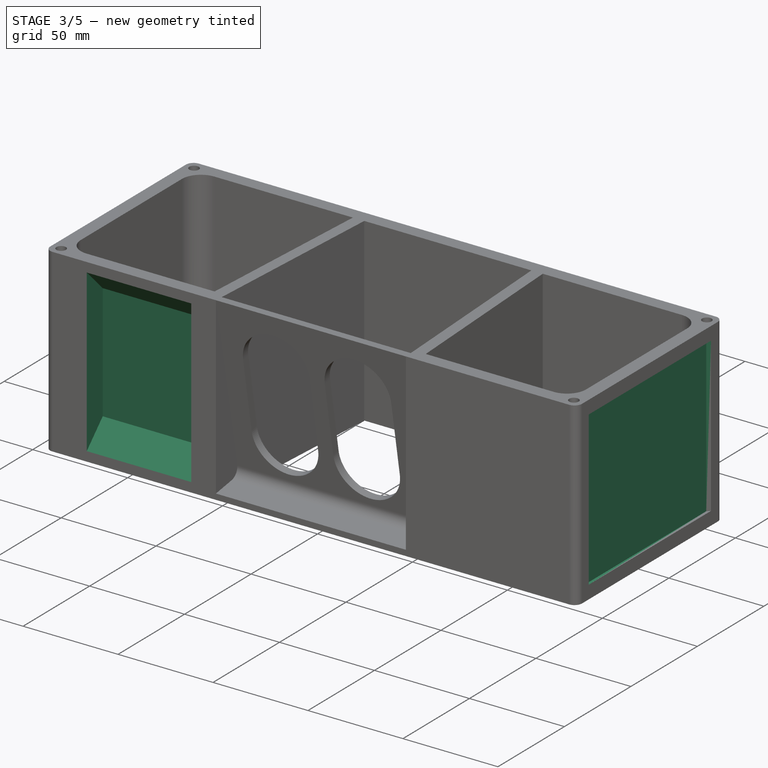
[diagram: stage 3 of 5 — iso view after this stage's code; geometry added in this stage tinted green]
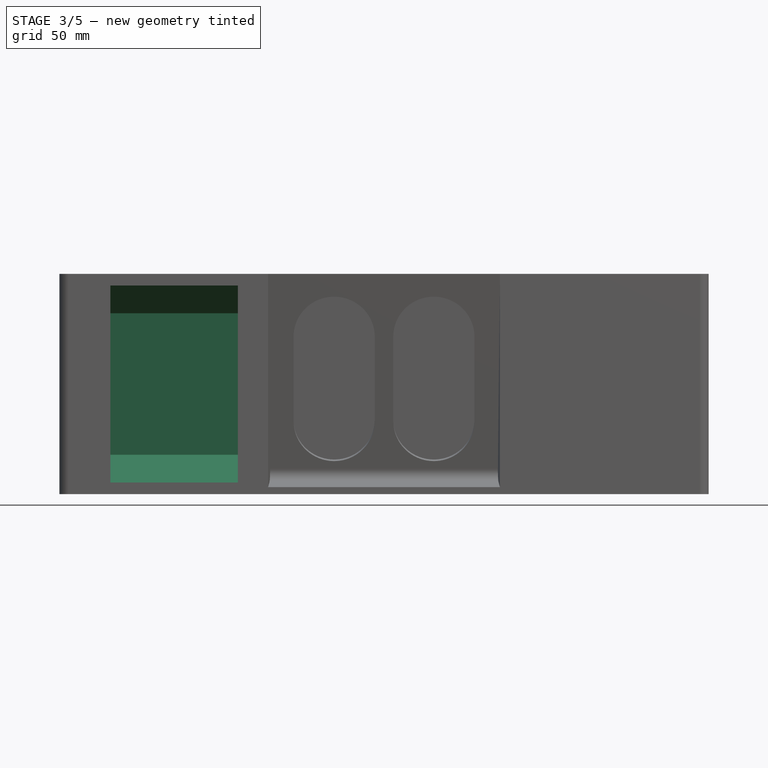
[diagram: stage 3 of 5 — front view after this stage's code; geometry added in this stage tinted green]
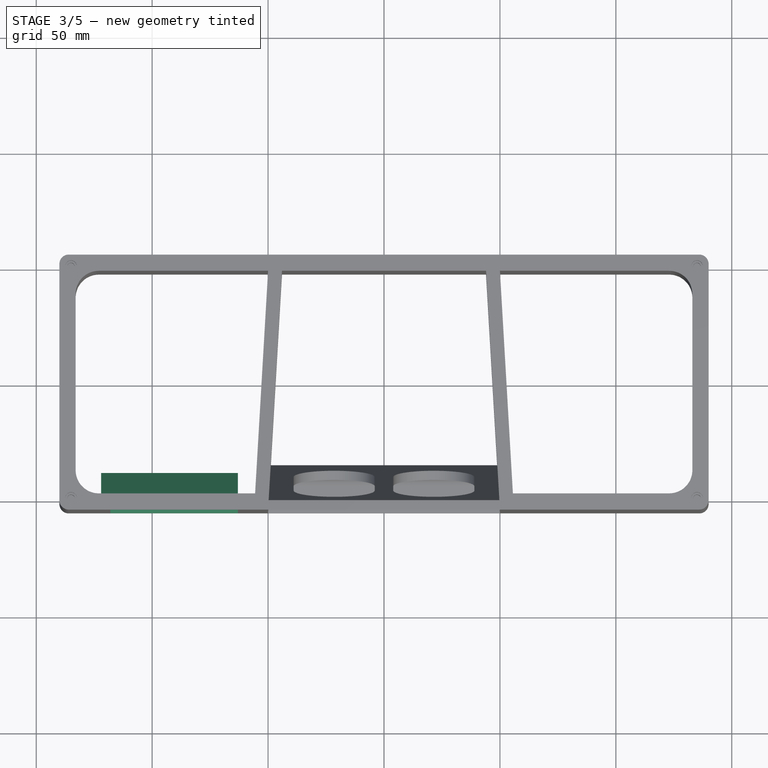
[diagram: stage 3 of 5 — top view after this stage's code; geometry added in this stage tinted green]
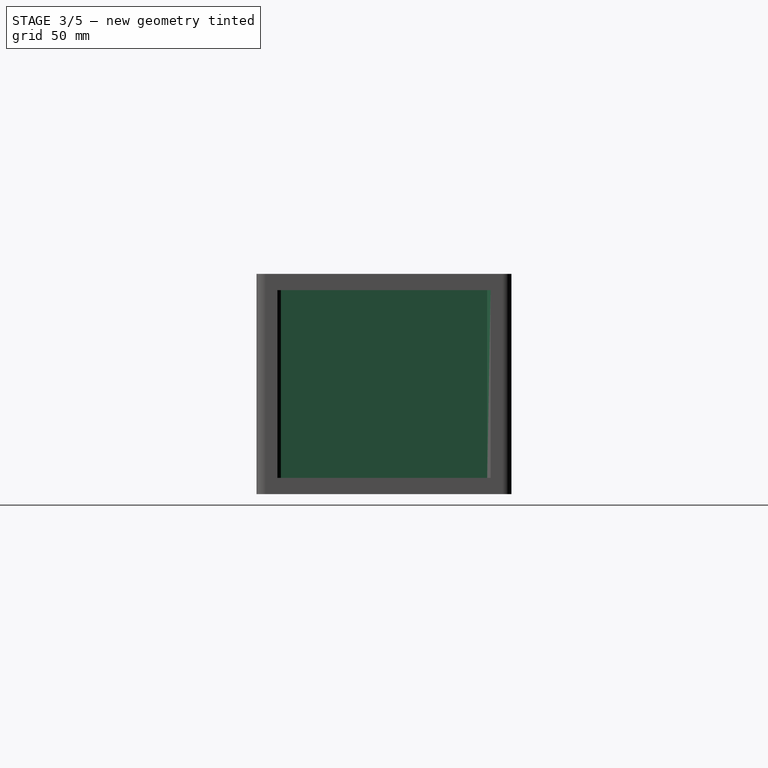
[diagram: stage 3 of 5 — right view after this stage's code; geometry added in this stage tinted green]
FEATURE [PartDesign::Mirrored] Mirrored  label="Mirror stands bottom"
  BaseFeature = -> Pocket007
  MirrorPlane = -> Sketch011 [V_Axis]
  Originals = -> [Pocket007]
FEATURE [Sketcher::SketchObject] Sketch012
  ExternalGeometry = -> [Mirrored]
  FullyConstrained = true
  MapMode = 5
  Placement = pos=(-140,0,0) rot=(0.57735,-0.57735,-0.57735;2.0944rad)
  Support = -> [Mirrored]
  sketch-geometry (4):
    g0: LineSegment StartX=-46 StartY=-88 StartZ=0 EndX=46 EndY=-88 EndZ=0
    g1: LineSegment StartX=46 StartY=-88 StartZ=0 EndX=46 EndY=-7 EndZ=0
    g2: LineSegment StartX=46 StartY=-7 StartZ=0 EndX=-46 EndY=-7 EndZ=0
    g3: LineSegment StartX=-46 StartY=-7 StartZ=0 EndX=-46 EndY=-88 EndZ=0
  constraints (12):
    c: Coincident(g0,g1)
    c: Coincident(g1,g2)
    c: Coincident(g2,g3)
    c: Coincident(g3,g0)
    c: Horizontal(g0)
    c: Horizontal(g2)
    c: Vertical(g1)
    c: Vertical(g3)
    c: DistanceX(g-6,g2) = 5
    c: DistanceY(g-4,g0) = 7
    c: DistanceY(g2,g-6) = 7
    c: DistanceX(g1,g-6) = 5
FEATURE [PartDesign::Pocket] Pocket008  label="pocket side"
  BaseFeature = -> Mirrored
  Length = 1.5
  Length2 = 100
  Profile = -> Sketch012
  Type = 0
FEATURE [PartDesign::Mirrored] Mirrored001  label="mirror pocket side"
  BaseFeature = -> Pocket008
  MirrorPlane = -> YZ_Plane002
  Originals = -> [Pocket008]
FEATURE [PartDesign::Draft] Draft  label="draft pocket side 1"
  Angle = 45
  Base = -> Mirrored001 [Face71,Face69]
  BaseFeature = -> Mirrored001
  NeutralPlane = -> Mirrored001 [Face29]
  SupportTransform = false
FEATURE [PartDesign::Draft] Draft001  label="draft pocket side 2"
  Angle = 45
  Base = -> Draft [Face48,Face50]
  BaseFeature = -> Draft
  NeutralPlane = -> Draft [Face22]
  SupportTransform = false
FEATURE [Sketcher::SketchObject] Sketch013
  ExternalGeometry = -> [Draft001]
  FullyConstrained = true
  MapMode = 5
  Placement = pos=(4.4e-15,-55,0) rot=(1,0,0;1.5708rad)
  Support = -> [Draft001]
  sketch-geometry (6):
    g0: LineSegment StartX=-63 StartY=-90 StartZ=0 EndX=-118 EndY=-90 EndZ=0
    g1: LineSegment StartX=-118 StartY=-90 StartZ=0 EndX=-118 EndY=-5 EndZ=0
    g2: LineSegment StartX=-118 StartY=-5 StartZ=0 EndX=-63 EndY=-5 EndZ=0
    g3: LineSegment StartX=-63 StartY=-5 StartZ=0 EndX=-63 EndY=-90 EndZ=0
    g4: LineSegment StartX=-63 StartY=-5 StartZ=0 EndX=-63 EndY=0 EndZ=0
    g5: LineSegment StartX=-63 StartY=-90 StartZ=0 EndX=-63 EndY=-95 EndZ=0
  constraints (18):
    c: Coincident(g0,g1)
    c: Coincident(g1,g2)
    c: Coincident(g2,g3)
    c: Coincident(g3,g0)
    c: Horizontal(g0)
    c: Horizontal(g2)
    c: Vertical(g1)
    c: Vertical(g3)
    c: DistanceX(g0,g0) = 55
    c: DistanceY(g1,g1) = 85
    c: Coincident(g4,g2)
    c: PointOnObject(g4,g-5)
    c: Coincident(g5,g0)
    c: PointOnObject(g5,g-3)
    c: Vertical(g5)
    c: Vertical(g4)
    c: Equal(g5,g4)
    c: DistanceX(g-4,g0) = 18
FEATURE [PartDesign::Pocket] Pocket009  label="pocket top"
  BaseFeature = -> Draft001
  Length = 0
  Length2 = 100
  Profile = -> Sketch013
  Type = 3
  UpToFace = -> Draft001 [Face36]
FEATURE [Sketcher::SketchObject] Sketch014
  ExternalGeometry = -> [Pocket009]
  FullyConstrained = true
  MapMode = 5
  Placement = pos=(-63,-5e-15,0) rot=(0.57735,-0.57735,-0.57735;2.0944rad)
  Support = -> [Pocket009]
  sketch-geometry (8):
    g0: LineSegment StartX=55 StartY=-90 StartZ=0 EndX=43 EndY=-78 EndZ=0
    g1: LineSegment StartX=43 StartY=-78 StartZ=0 EndX=43 EndY=-17 EndZ=0
    g2: LineSegment StartX=43 StartY=-17 StartZ=0 EndX=55 EndY=-5 EndZ=0
    g3: LineSegment StartX=39 StartY=-81 StartZ=0 EndX=39 EndY=-14 EndZ=0
    g4: LineSegment StartX=55 StartY=-90 StartZ=0 EndX=48 EndY=-90 EndZ=0
    g5: LineSegment StartX=48 StartY=-90 StartZ=0 EndX=39 EndY=-81 EndZ=0
    g6: LineSegment StartX=55 StartY=-5 StartZ=0 EndX=48 EndY=-5 EndZ=0
    g7: LineSegment StartX=48 StartY=-5 StartZ=0 EndX=39 EndY=-14 EndZ=0
  constraints (20):
    c: Coincident(g1,g0)
    c: Vertical(g1)
    c: Coincident(g2,g1)
    c: Equal(g0,g2)
    c: Angle(g-4,g0) = 0.785398
    c: Coincident(g0,g-6)
    c: Coincident(g2,g-4)
    c: DistanceX(g0,g0) = 12
    c: Vertical(g3)
    c: DistanceX(g3,g0) = 4
    c: Coincident(g4,g0)
    c: Coincident(g4,g-6)
    c: Coincident(g5,g4)
    c: Coincident(g5,g3)
    c: Parallel(g0,g5)
    c: Coincident(g6,g2)
    c: Coincident(g6,g-5)
    c: Coincident(g7,g6)
    c: Coincident(g7,g3)
    c: Parallel(g2,g7)
FEATURE [PartDesign::Pad] Pad004  label="top insert"
  BaseFeature = -> Pocket009
  Direction = (1,1,1)
  Length = 10
  Length2 = 100
  Profile = -> Sketch014
  Type = 3
  UpToFace = -> Pocket009 [Face50]
FEATURE [Sketcher::SketchObject] Sketch015
  ExternalGeometry = -> [Pad004]
  FullyConstrained = true
  MapMode = 5
  Placement = pos=(-118,-9.4e-15,0) rot=(0.57735,-0.57735,-0.57735;2.0944rad)
  Support = -> [Pad004]
  sketch-geometry (4):
    g0: LineSegment StartX=48 StartY=-5 StartZ=0 EndX=39 EndY=-14 EndZ=0
    g1: LineSegment StartX=39 StartY=-14 StartZ=0 EndX=39 EndY=-81 EndZ=0
    g2: LineSegment StartX=39 StartY=-81 StartZ=0 EndX=48 EndY=-90 EndZ=0
    g3: LineSegment StartX=48 StartY=-5 StartZ=0 EndX=48 EndY=-90 EndZ=0
  constraints (8):
    c: Coincident(g0,g-6)
    c: Coincident(g0,g-7)
    c: Coincident(g1,g0)
    c: Coincident(g1,g-7)
    c: Coincident(g2,g1)
    c: Coincident(g2,g-8)
    c: Coincident(g3,g0)
    c: Coincident(g3,g-8)
FEATURE [PartDesign::Pad] Pad005  label="top insert side"
  BaseFeature = -> Pad004
  Direction = (1,1,1)
  Length = 4
  Length2 = 100
  Profile = -> Sketch015
  Type = 0
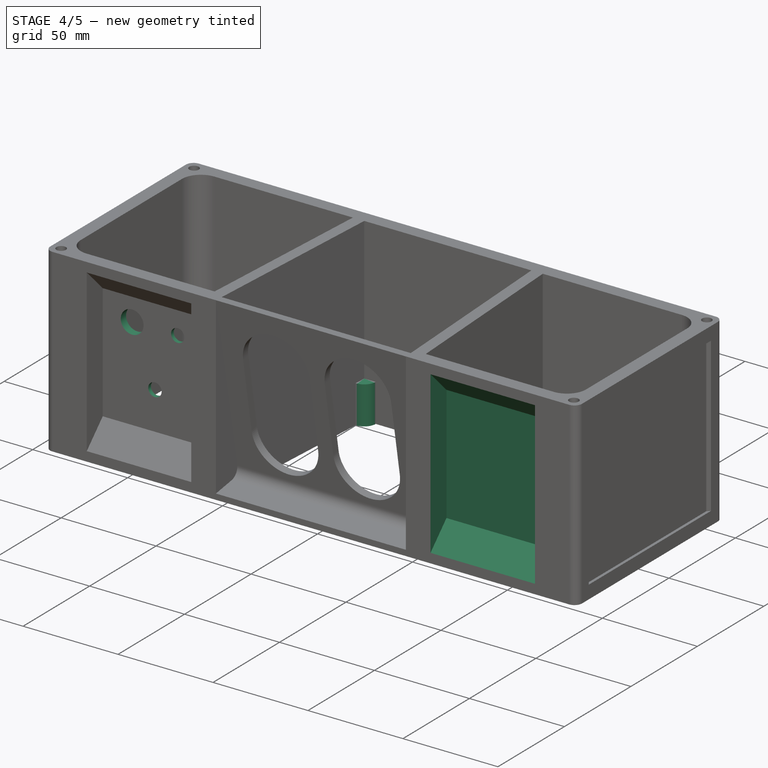
[diagram: stage 4 of 5 — iso view after this stage's code; geometry added in this stage tinted green]
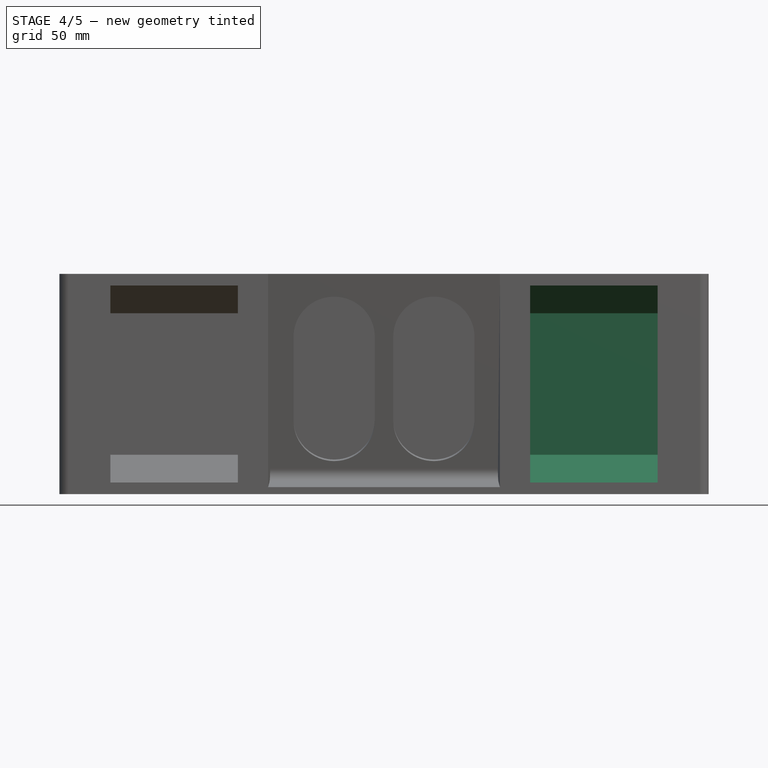
[diagram: stage 4 of 5 — front view after this stage's code; geometry added in this stage tinted green]
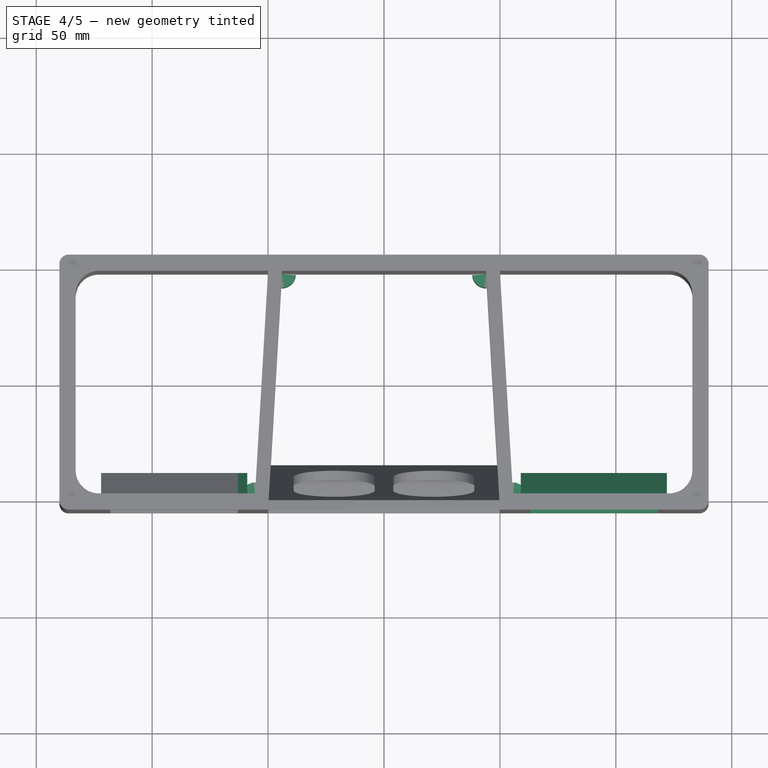
[diagram: stage 4 of 5 — top view after this stage's code; geometry added in this stage tinted green]
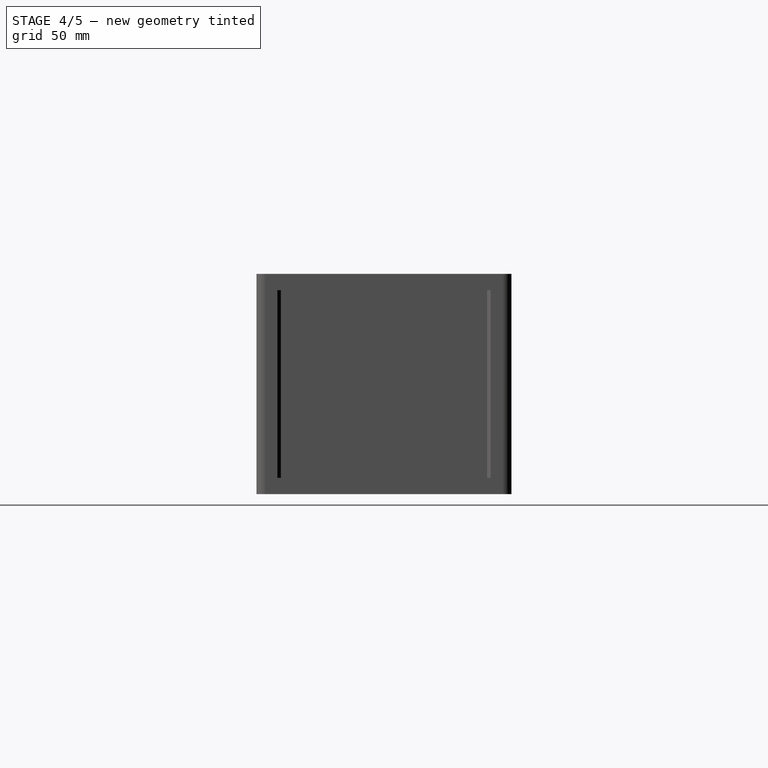
[diagram: stage 4 of 5 — right view after this stage's code; geometry added in this stage tinted green]
FEATURE [Sketcher::SketchObject] Sketch016
  ExternalGeometry = -> [Pad005]
  FullyConstrained = true
  MapMode = 5
  Placement = pos=(-63,0,0) rot=(0.57735,0.57735,0.57735;2.0944rad)
  Support = -> [Pad005]
  sketch-geometry (4):
    g0: LineSegment StartX=-48 StartY=-90 StartZ=0 EndX=-48 EndY=-5 EndZ=0
    g1: LineSegment StartX=-48 StartY=-5 StartZ=0 EndX=-39 EndY=-14 EndZ=0
    g2: LineSegment StartX=-39 StartY=-14 StartZ=0 EndX=-39 EndY=-81 EndZ=0
    g3: LineSegment StartX=-39 StartY=-81 StartZ=0 EndX=-48 EndY=-90 EndZ=0
  constraints (8):
    c: Coincident(g0,g-8)
    c: Coincident(g0,g-5)
    c: Coincident(g1,g0)
    c: Coincident(g1,g-6)
    c: Coincident(g2,g1)
    c: Coincident(g2,g-7)
    c: Coincident(g3,g2)
    c: Coincident(g3,g0)
FEATURE [PartDesign::Pad] Pad006  label="top insert side 2"
  BaseFeature = -> Pad005
  Direction = (1,1,1)
  Length = 4
  Length2 = 100
  Profile = -> Sketch016
  Type = 0
FEATURE [PartDesign::Mirrored] Mirrored002  label="top insert mirror"
  BaseFeature = -> Pad006
  MirrorPlane = -> Sketch013 [V_Axis]
  Originals = -> [Pocket009,Pad004,Pad005,Pad006]
FEATURE [Sketcher::SketchObject] Sketch017
  ExternalGeometry = -> [Mirrored002]
  FullyConstrained = true
  MapMode = 5
  Placement = pos=(0,-43,0) rot=(1,0,0;1.5708rad)
  Support = -> [Mirrored002]
  sketch-geometry (9):
    g0: LineSegment StartX=-90.5 StartY=-78 StartZ=0 EndX=-90.5 EndY=-17 EndZ=0
    g1: LineSegment StartX=-78.5 StartY=-78 StartZ=0 EndX=-78.5 EndY=-17 EndZ=0
    g2: LineSegment StartX=-102.5 StartY=-78 StartZ=0 EndX=-102.5 EndY=-17 EndZ=0
    g3: LineSegment StartX=-78.5 StartY=-17 StartZ=0 EndX=-90.5 EndY=-17 EndZ=0
    g4: LineSegment StartX=-90.5 StartY=-17 StartZ=0 EndX=-102.5 EndY=-17 EndZ=0
    g5: Circle CenterX=-90.5 CenterY=-58 CenterZ=0 NormalX=0 NormalY=0 NormalZ=1 AngleXU=0 Radius=3.5
    g6: Circle CenterX=-78.5 CenterY=-29 CenterZ=0 NormalX=0 NormalY=0 NormalZ=1 AngleXU=0 Radius=3.5
    g7: Circle CenterX=-102.5 CenterY=-29 CenterZ=0 NormalX=0 NormalY=0 NormalZ=1 AngleXU=0 Radius=6
    g8: Circle CenterX=-90.5 CenterY=-58 CenterZ=0 NormalX=0 NormalY=0 NormalZ=1 AngleXU=0 Radius=15
  constraints (26):
    c: PointOnObject(g0,g-5)
    c: Vertical(g0)
    c: Symmetric(g-4,g-6,g0)
    c: PointOnObject(g1,g-3)
    c: PointOnObject(g1,g-5)
    c: Vertical(g1)
    c: PointOnObject(g2,g-3)
    c: PointOnObject(g2,g-5)
    c: Vertical(g2)
    c: Coincident(g3,g1)
    c: Coincident(g3,g0)
    c: Coincident(g4,g3)
    c: Coincident(g4,g2)
    c: Equal(g4,g3)
    c: PointOnObject(g5,g0)
    c: PointOnObject(g6,g1)
    c: PointOnObject(g7,g2)
    c: Diameter(g5) = 7
    c: Coincident(g8,g5)
    c: Diameter(g8) = 30
    c: DistanceY(g0,g5) = 20
    c: Equal(g5,g6)
    c: Diameter(g7) = 12
    c: DistanceX(g3,g3) = 12
    c: DistanceY(g6,g7) = 0
    c: DistanceY(g6,g1) = 12
FEATURE [PartDesign::Pocket] Pocket010  label="holes buttons top"
  BaseFeature = -> Mirrored002
  Length = 0
  Length2 = 100
  Profile = -> Sketch017
  Type = 3
  UpToFace = -> Mirrored002 [Face118]
FEATURE [Sketcher::SketchObject] Sketch018
  ExternalGeometry = -> [Pocket010]
  FullyConstrained = true
  MapMode = 5
  Placement = pos=(0,-39,0) rot=(0,0.707107,0.707107;3.14159rad)
  Support = -> [Pocket010]
  sketch-geometry (8):
    g0: LineSegment StartX=84.25 StartY=-51.75 StartZ=0 EndX=96.75 EndY=-51.75 EndZ=0
    g1: LineSegment StartX=96.75 StartY=-51.75 StartZ=0 EndX=96.75 EndY=-64.25 EndZ=0
    g2: LineSegment StartX=96.75 StartY=-64.25 StartZ=0 EndX=84.25 EndY=-64.25 EndZ=0
    g3: LineSegment StartX=84.25 StartY=-64.25 StartZ=0 EndX=84.25 EndY=-51.75 EndZ=0
    g4: LineSegment StartX=72.5 StartY=-23.75 StartZ=0 EndX=84.5 EndY=-23.75 EndZ=0
    g5: LineSegment StartX=84.5 StartY=-23.75 StartZ=0 EndX=84.5 EndY=-34.25 EndZ=0
    g6: LineSegment StartX=84.5 StartY=-34.25 StartZ=0 EndX=72.5 EndY=-34.25 EndZ=0
    g7: LineSegment StartX=72.5 StartY=-34.25 StartZ=0 EndX=72.5 EndY=-23.75 EndZ=0
  constraints (22):
    c: Coincident(g0,g1)
    c: Coincident(g1,g2)
    c: Coincident(g2,g3)
    c: Coincident(g3,g0)
    c: Horizontal(g0)
    c: Horizontal(g2)
    c: Vertical(g1)
    c: Vertical(g3)
    c: Symmetric(g0,g1,g-3)
    c: DistanceY(g1,g1) = 12.5
    c: Equal(g1,g2)
    c: Coincident(g4,g5)
    c: Coincident(g5,g6)
    c: Coincident(g6,g7)
    c: Coincident(g7,g4)
    c: Horizontal(g4)
    c: Horizontal(g6)
    c: Vertical(g5)
    c: Vertical(g7)
    c: Symmetric(g4,g5,g-4)
    c: DistanceY(g5,g5) = 10.5
    c: DistanceX(g6,g6) = 12
FEATURE [PartDesign::Pocket] Pocket011  label="pockets encoder & poti"
  BaseFeature = -> Pocket010
  Length = 2
  Length2 = 100
  Profile = -> Sketch018
  Type = 0
FEATURE [Sketcher::SketchObject] Sketch019
  ExternalGeometry = -> [Pocket011]
  FullyConstrained = true
  MapMode = 5
  Placement = pos=(0,0,-95) rot=(1,0,0;3.14159rad)
  Support = -> [Pocket011]
  sketch-geometry (12):
    g0: LineSegment StartX=44 StartY=-48 StartZ=0 EndX=38 EndY=-48 EndZ=0
    g1: LineSegment StartX=44 StartY=-48 StartZ=0 EndX=44.3489 EndY=-42.0102 EndZ=0
    g2: LineSegment StartX=-44 StartY=-48 StartZ=0 EndX=-44.3489 EndY=-42.0102 EndZ=0
    g3: LineSegment StartX=-44 StartY=-48 StartZ=0 EndX=-38 EndY=-48 EndZ=0
    g4: ArcOfCircle CenterX=44 CenterY=-48 CenterZ=0 NormalX=0 NormalY=0 NormalZ=1 AngleXU=0 Radius=6 StartAngle=1.51261 EndAngle=3.14159
    g5: ArcOfCircle CenterX=-44 CenterY=-48 CenterZ=0 NormalX=0 NormalY=0 NormalZ=1 AngleXU=0 Radius=6 StartAngle=-1.8e-15 EndAngle=1.62898
    g6: LineSegment StartX=-55.5922 StartY=48 StartZ=0 EndX=-55.2433 EndY=42.0102 EndZ=0
    g7: LineSegment StartX=55.5922 StartY=48 StartZ=0 EndX=61.5922 EndY=48 EndZ=0
    g8: LineSegment StartX=55.5922 StartY=48 StartZ=0 EndX=55.2433 EndY=42.0102 EndZ=0
    g9: LineSegment StartX=-55.5922 StartY=48 StartZ=0 EndX=-61.5922 EndY=48 EndZ=0
    g10: ArcOfCircle CenterX=-55.5922 CenterY=48 CenterZ=0 NormalX=0 NormalY=0 NormalZ=1 AngleXU=0 Radius=6 StartAngle=3.14159 EndAngle=4.77058
    g11: ArcOfCircle CenterX=55.5922 CenterY=48 CenterZ=0 NormalX=0 NormalY=0 NormalZ=1 AngleXU=0 Radius=6 StartAngle=4.6542 EndAngle=6.28319
  constraints (32):
    c: Coincident(g0,g-5)
    c: PointOnObject(g0,g-4)
    c: Coincident(g1,g0)
    c: PointOnObject(g1,g-5)
    c: Coincident(g2,g-6)
    c: PointOnObject(g2,g-6)
    c: Coincident(g3,g2)
    c: PointOnObject(g3,g-4)
    c: Equal(g2,g1)
    c: Coincident(g4,g0)
    c: Coincident(g4,g1)
    c: Coincident(g4,g0)
    c: Coincident(g5,g2)
    c: Coincident(g5,g2)
    c: Coincident(g5,g3)
    c: DistanceX(g0,g0) = 6
    c: PointOnObject(g6,g-7)
    c: Coincident(g7,g-9)
    c: PointOnObject(g7,g-9)
    c: Coincident(g8,g7)
    c: PointOnObject(g8,g-3)
    c: Coincident(g9,g6)
    c: PointOnObject(g9,g-8)
    c: Equal(g7,g9)
    c: Coincident(g6,g-8)
    c: Coincident(g10,g6)
    c: Coincident(g10,g6)
    c: Coincident(g10,g9)
    c: Coincident(g11,g7)
    c: Coincident(g11,g7)
    c: Coincident(g11,g8)
    c: DistanceX(g7,g7) = 6
FEATURE [PartDesign::Pad] Pad007  label="extensions inserts"
  BaseFeature = -> Pocket011
  Direction = (1,1,1)
  Length = 20
  Length2 = 100
  Profile = -> Sketch019
  Reversed = true
  Type = 0
FEATURE [Sketcher::SketchObject] Sketch020
  ExternalGeometry = -> [Pad007]
  FullyConstrained = true
  MapMode = 5
  Placement = pos=(0,0,-95) rot=(1,0,0;3.14159rad)
  Support = -> [Pad007]
  sketch-geometry (8):
    g0: Circle CenterX=-55.5922 CenterY=49 CenterZ=0 NormalX=0 NormalY=0 NormalZ=1 AngleXU=0 Radius=2.5
    g1: Circle CenterX=-134 CenterY=49 CenterZ=0 NormalX=0 NormalY=0 NormalZ=1 AngleXU=0 Radius=2.5
    g2: Circle CenterX=-134 CenterY=-49 CenterZ=0 NormalX=0 NormalY=0 NormalZ=1 AngleXU=0 Radius=2.5
    g3: Circle CenterX=-44 CenterY=-49 CenterZ=0 NormalX=0 NormalY=0 NormalZ=1 AngleXU=0 Radius=2.5
    g4: Circle CenterX=55.5922 CenterY=49 CenterZ=0 NormalX=0 NormalY=0 NormalZ=1 AngleXU=0 Radius=2.5
    g5: Circle CenterX=134 CenterY=49 CenterZ=0 NormalX=0 NormalY=0 NormalZ=1 AngleXU=0 Radius=2.5
    g6: Circle CenterX=134 CenterY=-49 CenterZ=0 NormalX=0 NormalY=0 NormalZ=1 AngleXU=0 Radius=2.5
    g7: Circle CenterX=44 CenterY=-49 CenterZ=0 NormalX=0 NormalY=0 NormalZ=1 AngleXU=0 Radius=2.5
  constraints (24):
    c: Equal(g1,g0)
    c: Equal(g0,g4)
    c: Equal(g4,g5)
    c: Equal(g5,g6)
    c: Equal(g6,g7)
    c: Equal(g7,g3)
    c: Equal(g3,g2)
    c: Diameter(g1) = 5
    c: DistanceX(g-27,g1) = 6
    c: DistanceX(g-24,g2) = 6
    c: DistanceY(g-23,g2) = 6
    c: DistanceY(g1,g-28) = 6
    c: DistanceY(g-10,g6) = 6
    c: DistanceY(g5,g-5) = 6
    c: DistanceX(g6,g-9) = 6
    c: DistanceX(g5,g-5) = 6
    c: DistanceX(g-30,g0) = 6
    c: DistanceX(g4,g-17) = 6
    c: DistanceX(g-15,g7) = 6
    c: DistanceX(g3,g-18) = 6
    c: DistanceY(g7,g-14) = 1
    c: DistanceY(g3,g-18) = 1
    c: DistanceY(g-30,g0) = 1
    c: DistanceY(g-16,g4) = 1
FEATURE [PartDesign::Pocket] Pocket012  label="pockets inserts"
  BaseFeature = -> Pad007
  Length = 6.5
  Length2 = 100
  Profile = -> Sketch020
  Type = 0
FEATURE [Sketcher::SketchObject] Sketch021
  ExternalGeometry = -> [Pocket012]
  FullyConstrained = true
  MapMode = 5
  Placement = pos=(0,0,-88.5) rot=(1,0,0;3.14159rad)
  Support = -> [Pocket012]
  sketch-geometry (8):
    g0: Circle CenterX=-134 CenterY=49 CenterZ=0 NormalX=0 NormalY=0 NormalZ=1 AngleXU=0 Radius=1.6
    g1: Circle CenterX=-55.5922 CenterY=49 CenterZ=0 NormalX=0 NormalY=0 NormalZ=1 AngleXU=0 Radius=1.6
    g2: Circle CenterX=-134 CenterY=-49 CenterZ=0 NormalX=0 NormalY=0 NormalZ=1 AngleXU=0 Radius=1.6
    g3: Circle CenterX=-44 CenterY=-49 CenterZ=0 NormalX=0 NormalY=0 NormalZ=1 AngleXU=0 Radius=1.6
    g4: Circle CenterX=44 CenterY=-49 CenterZ=0 NormalX=0 NormalY=0 NormalZ=1 AngleXU=0 Radius=1.6
    g5: Circle CenterX=134 CenterY=-49 CenterZ=0 NormalX=0 NormalY=0 NormalZ=1 AngleXU=0 Radius=1.6
    g6: Circle CenterX=134 CenterY=49 CenterZ=0 NormalX=0 NormalY=0 NormalZ=1 AngleXU=0 Radius=1.6
    g7: Circle CenterX=55.5922 CenterY=49 CenterZ=0 NormalX=0 NormalY=0 NormalZ=1 AngleXU=0 Radius=1.6
  constraints (16):
    c: Coincident(g0,g-3)
    c: Coincident(g1,g-4)
    c: Coincident(g2,g-7)
    c: Coincident(g3,g-8)
    c: Coincident(g4,g-9)
    c: Coincident(g5,g-10)
    c: Coincident(g6,g-6)
    c: Coincident(g7,g-5)
    c: Equal(g5,g4)
    c: Equal(g4,g7)
    c: Equal(g7,g6)
    c: Equal(g6,g2)
    c: Equal(g2,g3)
    c: Equal(g3,g1)
    c: Equal(g1,g0)
    c: Diameter(g0) = 3.2
FEATURE [PartDesign::Pocket] Pocket013
  BaseFeature = -> Pocket012
  Length = 5
  Length2 = 100
  Profile = -> Sketch021
  Type = 0
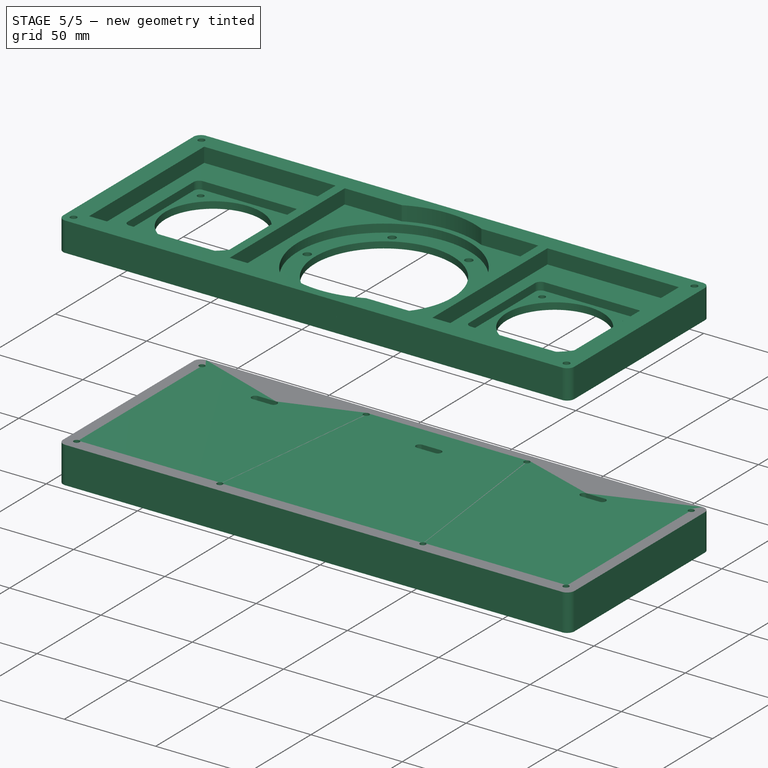
[diagram: stage 5 of 5 — iso view after this stage's code; geometry added in this stage tinted green]
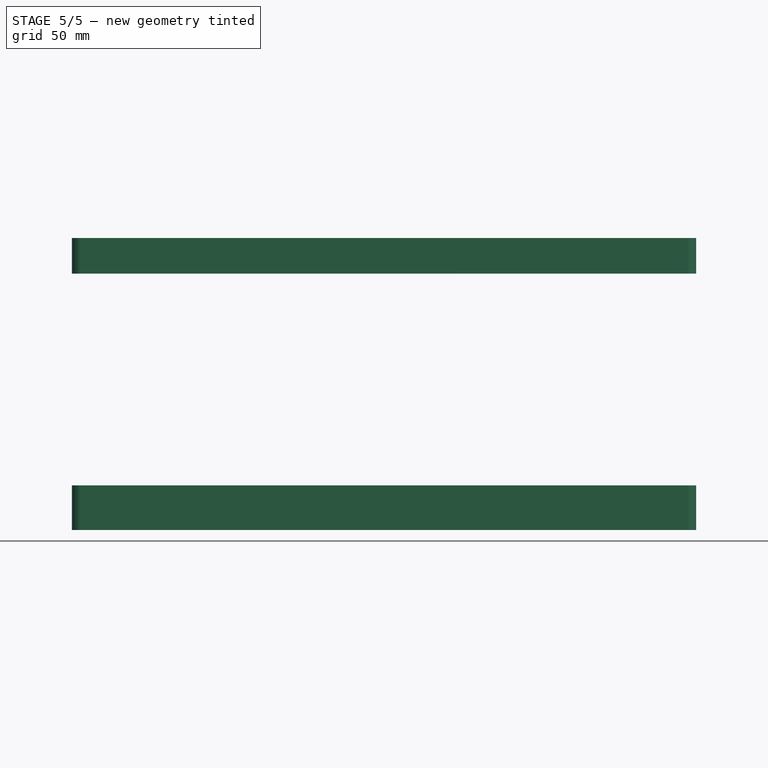
[diagram: stage 5 of 5 — front view after this stage's code; geometry added in this stage tinted green]
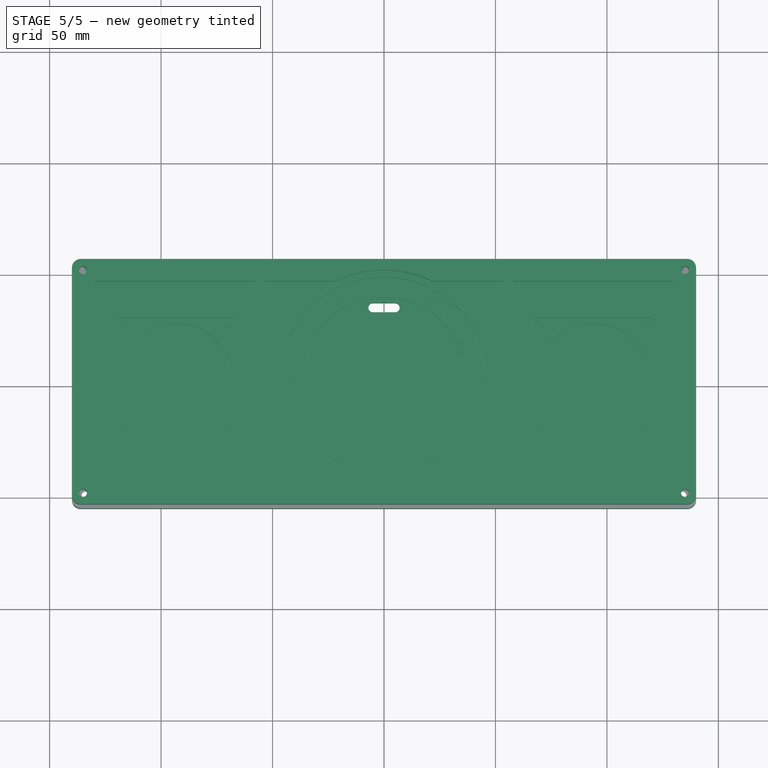
[diagram: stage 5 of 5 — top view after this stage's code; geometry added in this stage tinted green]
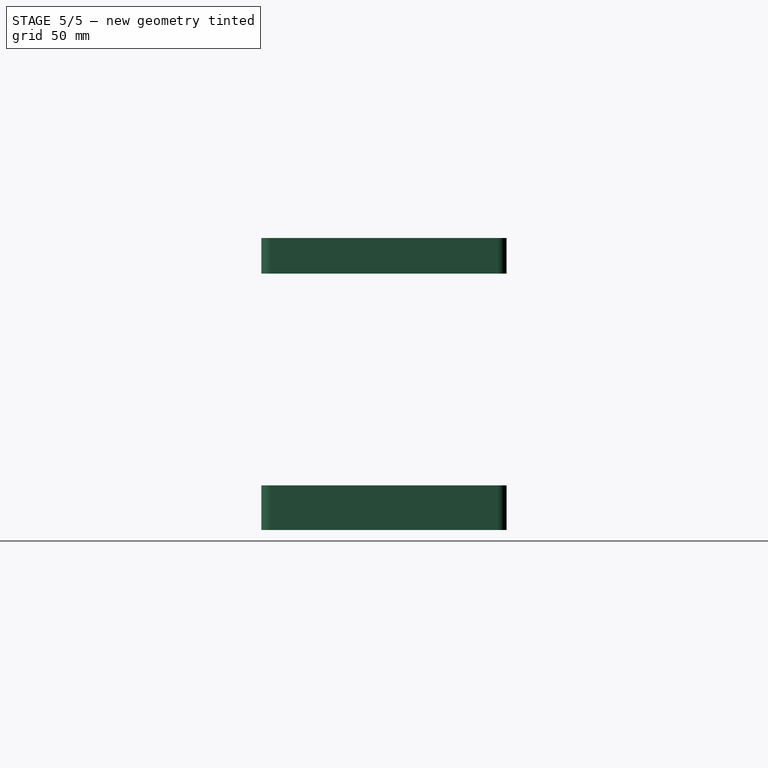
[diagram: stage 5 of 5 — right view after this stage's code; geometry added in this stage tinted green]
FEATURE [PartDesign::ShapeBinder] ShapeBinder
  Support = -> [Pocket003]
  TraceSupport = false
FEATURE [Sketcher::SketchObject] Sketch005
  ExternalGeometry = -> [ShapeBinder]
  FullyConstrained = true
  MapMode = 5
  Placement = pos=(0,0,8) rot=(0,0,1;0rad)
  Support = -> [ShapeBinder]
  sketch-geometry (30):
    g0: LineSegment StartX=-140 StartY=55 StartZ=0 EndX=140 EndY=55 EndZ=0
    g1: LineSegment StartX=140 StartY=55 StartZ=0 EndX=140 EndY=-55 EndZ=0
    g2: LineSegment StartX=140 StartY=-55 StartZ=0 EndX=-140 EndY=-55 EndZ=0
    g3: LineSegment StartX=-140 StartY=-55 StartZ=0 EndX=-140 EndY=55 EndZ=0
    g4: LineSegment StartX=130 StartY=45 StartZ=0 EndX=130 EndY=-45 EndZ=0
    g5: LineSegment StartX=-130 StartY=-45 StartZ=0 EndX=-130 EndY=45 EndZ=0
    g6: Circle CenterX=-135 CenterY=50 CenterZ=0 NormalX=0 NormalY=0 NormalZ=1 AngleXU=0 Radius=1.75
    g7: Circle CenterX=-135 CenterY=-50 CenterZ=0 NormalX=0 NormalY=0 NormalZ=1 AngleXU=0 Radius=1.75
    g8: Circle CenterX=135 CenterY=-50 CenterZ=0 NormalX=0 NormalY=0 NormalZ=1 AngleXU=0 Radius=1.75
    g9: Circle CenterX=135 CenterY=50 CenterZ=0 NormalX=0 NormalY=0 NormalZ=1 AngleXU=0 Radius=1.75
    g10: LineSegment StartX=-58 StartY=45 StartZ=0 EndX=-58 EndY=-45 EndZ=0
    g11: LineSegment StartX=-53 StartY=45 StartZ=0 EndX=-53 EndY=-45 EndZ=0
    g12: LineSegment StartX=58 StartY=45 StartZ=0 EndX=58 EndY=-45 EndZ=0
    g13: LineSegment StartX=53 StartY=45 StartZ=0 EndX=53 EndY=-45 EndZ=0
    g14: LineSegment StartX=-130 StartY=45 StartZ=0 EndX=-58 EndY=45 EndZ=0
    g15: LineSegment StartX=58 StartY=45 StartZ=0 EndX=130 EndY=45 EndZ=0
    g16: LineSegment StartX=58 StartY=-45 StartZ=0 EndX=130 EndY=-45 EndZ=0
    g17: LineSegment StartX=-130 StartY=-45 StartZ=0 EndX=-58 EndY=-45 EndZ=0
    g18: LineSegment StartX=-58 StartY=-45 StartZ=0 EndX=-53 EndY=-45 EndZ=0
    g19: LineSegment StartX=53 StartY=-45 StartZ=0 EndX=58 EndY=-45 EndZ=0
    g20: GeomPoint X=53 Y=0 Z=0
    g21: GeomPoint X=-53 Y=0 Z=0
    g22: LineSegment StartX=-53 StartY=45 StartZ=0 EndX=-21.7945 EndY=45 EndZ=0
    g23: LineSegment StartX=53 StartY=45 StartZ=0 EndX=21.7945 EndY=45 EndZ=0
    g24: LineSegment StartX=53 StartY=-45 StartZ=0 EndX=21.7945 EndY=-45 EndZ=0
    g25: LineSegment StartX=-53 StartY=-45 StartZ=0 EndX=-21.7945 EndY=-45 EndZ=0
    g26: ArcOfCircle CenterX=0 CenterY=0 CenterZ=0 NormalX=0 NormalY=0 NormalZ=1 AngleXU=0 Radius=50 StartAngle=1.11977 EndAngle=2.02182
    g27: ArcOfCircle CenterX=0 CenterY=0 CenterZ=0 NormalX=0 NormalY=0 NormalZ=1 AngleXU=0 Radius=50 StartAngle=4.26136 EndAngle=5.16342
    g28: GeomPoint X=0 Y=47 Z=0
    g29: GeomPoint X=0 Y=50 Z=0
  constraints (75):
    c: Coincident(g0,g1)
    c: Coincident(g1,g2)
    c: Coincident(g2,g3)
    c: Coincident(g3,g0)
    c: Horizontal(g0)
    c: Horizontal(g2)
    c: Vertical(g1)
    c: Vertical(g3)
    c: Coincident(g0,g-6)
    c: Coincident(g1,g-5)
    c: Vertical(g4)
    c: Vertical(g5)
    c: Coincident(g6,g-18)
    c: Coincident(g7,g-8)
    c: Coincident(g8,g-27)
    c: Coincident(g9,g-28)
    c: Equal(g-28,g9)
    c: Equal(g8,g-27)
    c: Equal(g7,g-8)
    c: Equal(g6,g-18)
    c: Vertical(g10)
    c: Vertical(g11)
    c: Vertical(g12)
    c: Vertical(g13)
    c: Equal(g4,g12)
    c: Equal(g12,g13)
    c: Equal(g11,g10)
    c: Equal(g5,g10)
    c: Coincident(g14,g5)
    c: Coincident(g14,g10)
    c: Horizontal(g14)
    c: Coincident(g15,g12)
    c: Coincident(g15,g4)
    c: Horizontal(g15)
    c: Coincident(g16,g12)
    c: Coincident(g16,g4)
    c: Coincident(g17,g5)
    c: Coincident(g17,g10)
    c: Equal(g11,g13)
    c: DistanceY(g12,g13) = 0
    c: DistanceY(g10,g11) = 0
    c: Coincident(g18,g10)
    c: Coincident(g18,g11)
    c: Coincident(g19,g13)
    c: Coincident(g19,g12)
    c: Equal(g19,g18)
    c: PointOnObject(g20,g13)
    c: PointOnObject(g21,g11)
    c: PointOnObject(g20,g-1)
    c: Symmetric(g21,g20,g-1)
    c: DistanceX(g18,g18) = 5
    c: Symmetric(g2,g5,g7)
    c: Symmetric(g0,g4,g9)
    c: DistanceX(g14,g14) = 72
    c: Coincident(g22,g11)
    c: Horizontal(g22)
    c: Coincident(g23,g13)
    c: Horizontal(g23)
    c: Coincident(g24,g13)
    c: Horizontal(g24)
    c: Coincident(g25,g11)
    c: Horizontal(g25)
    c: Equal(g23,g24)
    c: Equal(g24,g25)
    c: Coincident(g26,g-1)
    c: Coincident(g26,g22)
    c: Coincident(g26,g23)
    c: Coincident(g27,g26)
    c: Coincident(g27,g25)
    c: Coincident(g27,g24)
    c: PointOnObject(g28,g-17)
    c: PointOnObject(g29,g26)
    c: PointOnObject(g29,g-2)
    c: PointOnObject(g28,g-2)
    c: DistanceY(g28,g29) = 3
FEATURE [PartDesign::Pad] Pad001  label="frame"
  Direction = (1,1,1)
  Length = 8
  Length2 = 100
  Profile = -> Sketch005
  Type = 0
FEATURE [PartDesign::Fillet] Fillet001  label="fillet outer corners001"
  Base = -> Pad001 [Edge8,Edge5,Edge2,Edge1]
  BaseFeature = -> Pad001
  Radius = 4
  SupportTransform = false
FEATURE [PartDesign::Body] Body001  label="front frame"
  Group = -> [ShapeBinder,Sketch005,Pad001,Fillet001]
  Origin = -> Origin001
  Tip = -> Fillet001
FEATURE [PartDesign::Fillet] Fillet002
  Base = -> Pocket003 [Edge8,Edge5,Edge1,Edge2]
  BaseFeature = -> Pocket003
  Radius = 4
  SupportTransform = false
FEATURE [PartDesign::Body] Body002  label="main frame"
  Group = -> [ShapeBinder001,Sketch006,Pad002,Sketch007,Pad003,Fillet,Sketch008,Pocket004,Fillet003,Sketch009,Pocket005,Sketch010,Pocket006,Sketch011,Pocket007,Mirrored,Sketch012,Pocket008,Mirrored001,Draft,Draft001,Sketch013,Pocket009,Sketch014,Pad004,Sketch015,Pad005,Sketch016,Pad006,Mirrored002,Sketch017,Pocket010,Sketch018,Pocket011,Sketch019,Pad007,Sketch020,Pocket012,Sketch021,Pocket013]
  Origin = -> Origin002
  Tip = -> Pocket013
FEATURE [PartDesign::ShapeBinder] ShapeBinder002
  Support = -> [Pocket013]
  TraceSupport = false
FEATURE [Sketcher::SketchObject] Sketch022
  ExternalGeometry = -> [ShapeBinder002]
  FullyConstrained = true
  MapMode = 5
  Placement = pos=(0,0,-95) rot=(1,0,0;3.14159rad)
  Support = -> [ShapeBinder002]
  sketch-geometry (30):
    g0: Circle CenterX=134 CenterY=49 CenterZ=0 NormalX=0 NormalY=0 NormalZ=1 AngleXU=0 Radius=1.6
    g1: Circle CenterX=134 CenterY=-49 CenterZ=0 NormalX=0 NormalY=0 NormalZ=1 AngleXU=0 Radius=1.6
    g2: Circle CenterX=44 CenterY=-49 CenterZ=0 NormalX=0 NormalY=0 NormalZ=1 AngleXU=0 Radius=1.6
    g3: Circle CenterX=-44 CenterY=-49 CenterZ=0 NormalX=0 NormalY=0 NormalZ=1 AngleXU=0 Radius=1.6
    g4: Circle CenterX=-134 CenterY=-49 CenterZ=0 NormalX=0 NormalY=0 NormalZ=1 AngleXU=0 Radius=1.6
    g5: Circle CenterX=-134 CenterY=49 CenterZ=0 NormalX=0 NormalY=0 NormalZ=1 AngleXU=0 Radius=1.6
    g6: Circle CenterX=-55.5922 CenterY=49 CenterZ=0 NormalX=0 NormalY=0 NormalZ=1 AngleXU=0 Radius=1.6
    g7: Circle CenterX=55.5922 CenterY=49 CenterZ=0 NormalX=0 NormalY=0 NormalZ=1 AngleXU=0 Radius=1.6
    g8: LineSegment StartX=-136 StartY=55 StartZ=0 EndX=136 EndY=55 EndZ=0
    g9: LineSegment StartX=-140 StartY=51 StartZ=0 EndX=-140 EndY=-51 EndZ=0
    g10: LineSegment StartX=-136 StartY=-55 StartZ=0 EndX=136 EndY=-55 EndZ=0
    g11: LineSegment StartX=140 StartY=-51 StartZ=0 EndX=140 EndY=51 EndZ=0
    g12: ArcOfCircle CenterX=-136 CenterY=51 CenterZ=0 NormalX=0 NormalY=0 NormalZ=1 AngleXU=0 Radius=4 StartAngle=1.5708 EndAngle=3.14159
    g13: ArcOfCircle CenterX=-136 CenterY=-51 CenterZ=0 NormalX=0 NormalY=0 NormalZ=1 AngleXU=0 Radius=4 StartAngle=3.14159 EndAngle=4.71239
    g14: ArcOfCircle CenterX=136 CenterY=51 CenterZ=0 NormalX=0 NormalY=0 NormalZ=1 AngleXU=0 Radius=4 StartAngle=-9e-16 EndAngle=1.5708
    g15: ArcOfCircle CenterX=136 CenterY=-51 CenterZ=0 NormalX=0 NormalY=0 NormalZ=1 AngleXU=0 Radius=4 StartAngle=4.71239 EndAngle=6.28319
    g16: ArcOfCircle CenterX=-95 CenterY=-35 CenterZ=0 NormalX=0 NormalY=0 NormalZ=1 AngleXU=0 Radius=2 StartAngle=1.5708 EndAngle=4.71239
    g17: ArcOfCircle CenterX=-85 CenterY=-35 CenterZ=0 NormalX=0 NormalY=0 NormalZ=1 AngleXU=0 Radius=2 StartAngle=4.71239 EndAngle=7.85398
    g18: LineSegment StartX=-95 StartY=-37 StartZ=0 EndX=-85 EndY=-37 EndZ=0
    g19: LineSegment StartX=-95 StartY=-33 StartZ=0 EndX=-85 EndY=-33 EndZ=0
    g20: ArcOfCircle CenterX=-5 CenterY=-35 CenterZ=0 NormalX=0 NormalY=0 NormalZ=1 AngleXU=0 Radius=2 StartAngle=1.5708 EndAngle=4.71239
    g21: ArcOfCircle CenterX=5 CenterY=-35 CenterZ=0 NormalX=0 NormalY=0 NormalZ=1 AngleXU=0 Radius=2 StartAngle=4.71239 EndAngle=7.85398
    g22: LineSegment StartX=-5 StartY=-37 StartZ=0 EndX=5 EndY=-37 EndZ=0
    g23: LineSegment StartX=-5 StartY=-33 StartZ=0 EndX=5 EndY=-33 EndZ=0
    g24: ArcOfCircle CenterX=85 CenterY=-35 CenterZ=0 NormalX=0 NormalY=0 NormalZ=1 AngleXU=0 Radius=2 StartAngle=1.5708 EndAngle=4.71239
    g25: ArcOfCircle CenterX=95 CenterY=-35 CenterZ=0 NormalX=0 NormalY=0 NormalZ=1 AngleXU=0 Radius=2 StartAngle=4.71239 EndAngle=7.85398
    g26: LineSegment StartX=85 StartY=-37 StartZ=0 EndX=95 EndY=-37 EndZ=0
    g27: LineSegment StartX=85 StartY=-33 StartZ=0 EndX=95 EndY=-33 EndZ=0
    g28: LineSegment StartX=-140 StartY=-35 StartZ=0 EndX=140 EndY=-35 EndZ=0
    g29: GeomPoint X=0 Y=-35 Z=0
  constraints (71):
    c: Coincident(g0,g-21)
    c: Coincident(g1,g-22)
    c: Coincident(g2,g-19)
    c: Coincident(g3,g-17)
    c: Coincident(g4,g-16)
    c: Coincident(g5,g-12)
    c: Coincident(g6,g-15)
    c: Coincident(g7,g-20)
    c: Equal(g5,g6)
    c: Equal(g6,g7)
    c: Equal(g7,g0)
    c: Equal(g0,g1)
    c: Equal(g1,g2)
    c: Equal(g2,g3)
    c: Equal(g3,g4)
    c: Diameter(g5) = 3.2
    c: Coincident(g8,g-11)
    c: Coincident(g8,g-9)
    c: Coincident(g9,g-10)
    c: Coincident(g9,g-7)
    c: Coincident(g10,g-7)
    c: Coincident(g10,g-8)
    c: Coincident(g11,g-8)
    c: Coincident(g11,g-9)
    c: Coincident(g12,g-10)
    c: Coincident(g12,g9)
    c: Coincident(g12,g8)
    c: Coincident(g13,g-7)
    c: Coincident(g13,g10)
    c: Coincident(g13,g9)
    c: Coincident(g14,g-9)
    c: Coincident(g14,g8)
    c: Coincident(g14,g11)
    c: Coincident(g15,g-8)
    c: Coincident(g15,g11)
    c: Coincident(g15,g10)
    c: Tangent(g16,g19) = 1.5708
    c: Tangent(g16,g18) = -1.5708
    c: Tangent(g18,g17) = -1.5708
    c: Tangent(g19,g17) = 1.5708
    c: Horizontal(g18)
    c: Equal(g16,g17)
    c: Tangent(g20,g23) = 1.5708
    c: Tangent(g20,g22) = -1.5708
    c: Tangent(g22,g21) = -1.5708
    c: Tangent(g23,g21) = 1.5708
    c: Horizontal(g22)
    c: Equal(g20,g21)
    c: Tangent(g24,g27) = 1.5708
    c: Tangent(g24,g26) = -1.5708
    c: Tangent(g26,g25) = -1.5708
    c: Tangent(g27,g25) = 1.5708
    c: Horizontal(g26)
    c: Equal(g24,g25)
    c: Equal(g19,g23)
    c: Equal(g23,g27)
    c: Equal(g17,g21)
    c: Equal(g21,g25)
    c: DistanceX(g22,g22) = 10
    c: DistanceY(g20,g20) = 4
    c: PointOnObject(g28,g9)
    c: PointOnObject(g28,g11)
    c: Horizontal(g28)
    c: PointOnObject(g16,g28)
    c: PointOnObject(g21,g28)
    c: PointOnObject(g24,g28)
    c: DistanceY(g10,g28) = 20
    c: Symmetric(g20,g21,g29)
    c: PointOnObject(g29,g-2)
    c: DistanceX(g17,g20) = 80
    c: DistanceX(g21,g24) = 80
FEATURE [PartDesign::Pad] Pad008  label="base "
  Direction = (1,1,1)
  Length = 5
  Length2 = 100
  Profile = -> Sketch022
  Type = 0
FEATURE [Sketcher::SketchObject] Sketch023
  ExternalGeometry = -> [Pad008]
  FullyConstrained = true
  MapMode = 5
  Placement = pos=(0,0,-100) rot=(1,0,0;3.14159rad)
  Support = -> [Pad008]
  sketch-geometry (40):
    g0: LineSegment StartX=-136 StartY=55 StartZ=0 EndX=136 EndY=55 EndZ=0
    g1: LineSegment StartX=140 StartY=51 StartZ=0 EndX=140 EndY=-51 EndZ=0
    g2: LineSegment StartX=136 StartY=-55 StartZ=0 EndX=-136 EndY=-55 EndZ=0
    g3: LineSegment StartX=-140 StartY=-51 StartZ=0 EndX=-140 EndY=51 EndZ=0
    g4: ArcOfCircle CenterX=-136 CenterY=51 CenterZ=0 NormalX=0 NormalY=0 NormalZ=1 AngleXU=0 Radius=4 StartAngle=1.5708 EndAngle=3.14159
    g5: ArcOfCircle CenterX=136 CenterY=51 CenterZ=0 NormalX=0 NormalY=0 NormalZ=1 AngleXU=0 Radius=4 StartAngle=3e-16 EndAngle=1.5708
    g6: ArcOfCircle CenterX=-136 CenterY=-51 CenterZ=0 NormalX=0 NormalY=0 NormalZ=1 AngleXU=0 Radius=4 StartAngle=3.14159 EndAngle=4.71239
    g7: ArcOfCircle CenterX=136 CenterY=-51 CenterZ=0 NormalX=0 NormalY=0 NormalZ=1 AngleXU=0 Radius=4 StartAngle=4.71239 EndAngle=6.28319
    g8: ArcOfCircle CenterX=-44 CenterY=-49 CenterZ=0 NormalX=0 NormalY=0 NormalZ=1 AngleXU=0 Radius=3 StartAngle=3.48143 EndAngle=5.94335
    g9: ArcOfCircle CenterX=44 CenterY=-49 CenterZ=0 NormalX=0 NormalY=0 NormalZ=1 AngleXU=0 Radius=3 StartAngle=3.48143 EndAngle=5.94335
    g10: ArcOfCircle CenterX=134 CenterY=-49 CenterZ=0 NormalX=0 NormalY=0 NormalZ=1 AngleXU=0 Radius=3 StartAngle=3.48143 EndAngle=7.51414
    g11: ArcOfCircle CenterX=134 CenterY=49 CenterZ=0 NormalX=0 NormalY=0 NormalZ=1 AngleXU=0 Radius=3 StartAngle=5.05223 EndAngle=9.08494
    g12: ArcOfCircle CenterX=55.5922 CenterY=49 CenterZ=0 NormalX=0 NormalY=0 NormalZ=1 AngleXU=0 Radius=3 StartAngle=0.339837 EndAngle=2.80176
    g13: ArcOfCircle CenterX=-55.5922 CenterY=49 CenterZ=0 NormalX=0 NormalY=0 NormalZ=1 AngleXU=0 Radius=3 StartAngle=0.339837 EndAngle=2.80176
    g14: ArcOfCircle CenterX=-134 CenterY=49 CenterZ=0 NormalX=0 NormalY=0 NormalZ=1 AngleXU=0 Radius=3 StartAngle=0.339837 EndAngle=4.37255
    g15: ArcOfCircle CenterX=-134 CenterY=-49 CenterZ=0 NormalX=0 NormalY=0 NormalZ=1 AngleXU=0 Radius=3 StartAngle=1.91063 EndAngle=5.94335
    g16: LineSegment StartX=-135 StartY=46.1716 StartZ=0 EndX=-135 EndY=5 EndZ=0
    g17: LineSegment StartX=-135 StartY=-46.1716 StartZ=0 EndX=-135 EndY=-5 EndZ=0
    g18: ArcOfCircle CenterX=-135 CenterY=0 CenterZ=0 NormalX=0 NormalY=0 NormalZ=1 AngleXU=0 Radius=5 StartAngle=4.71239 EndAngle=7.85398
    g19: LineSegment StartX=135 StartY=-46.1716 StartZ=0 EndX=135 EndY=-5 EndZ=0
    g20: LineSegment StartX=135 StartY=46.1716 StartZ=0 EndX=135 EndY=5 EndZ=0
    g21: ArcOfCircle CenterX=135 CenterY=0 CenterZ=0 NormalX=0 NormalY=0 NormalZ=1 AngleXU=0 Radius=5 StartAngle=1.5708 EndAngle=4.71239
    g22: LineSegment StartX=-131.172 StartY=50 StartZ=0 EndX=-126.172 EndY=50 EndZ=0
    g23: LineSegment StartX=-58.4207 StartY=50 StartZ=0 EndX=-116.172 EndY=50 EndZ=0
    g24: LineSegment StartX=-52.7638 StartY=50 StartZ=0 EndX=-5 EndY=50 EndZ=0
    g25: LineSegment StartX=52.7638 StartY=50 StartZ=0 EndX=5 EndY=50 EndZ=0
    g26: LineSegment StartX=58.4207 StartY=50 StartZ=0 EndX=116.172 EndY=50 EndZ=0
    g27: LineSegment StartX=131.172 StartY=50 StartZ=0 EndX=126.172 EndY=50 EndZ=0
    g28: LineSegment StartX=-131.172 StartY=-50 StartZ=0 EndX=-126.172 EndY=-50 EndZ=0
    g29: LineSegment StartX=-46.8284 StartY=-50 StartZ=0 EndX=-116.172 EndY=-50 EndZ=0
    g30: LineSegment StartX=-41.1716 StartY=-50 StartZ=0 EndX=-5 EndY=-50 EndZ=0
    g31: LineSegment StartX=41.1716 StartY=-50 StartZ=0 EndX=5 EndY=-50 EndZ=0
    g32: LineSegment StartX=46.8284 StartY=-50 StartZ=0 EndX=116.172 EndY=-50 EndZ=0
    g33: LineSegment StartX=131.172 StartY=-50 StartZ=0 EndX=126.172 EndY=-50 EndZ=0
    g34: ArcOfCircle CenterX=-121.172 CenterY=50 CenterZ=0 NormalX=0 NormalY=0 NormalZ=1 AngleXU=0 Radius=5 StartAngle=3.14159 EndAngle=6.28319
    g35: ArcOfCircle CenterX=0 CenterY=50 CenterZ=0 NormalX=0 NormalY=0 NormalZ=1 AngleXU=0 Radius=5 StartAngle=3.14159 EndAngle=6.28319
    g36: ArcOfCircle CenterX=121.172 CenterY=50 CenterZ=0 NormalX=0 NormalY=0 NormalZ=1 AngleXU=0 Radius=5 StartAngle=3.14159 EndAngle=6.28319
    g37: ArcOfCircle CenterX=-121.172 CenterY=-50 CenterZ=0 NormalX=0 NormalY=0 NormalZ=1 AngleXU=0 Radius=5 StartAngle=0 EndAngle=3.14159
    g38: ArcOfCircle CenterX=0 CenterY=-50 CenterZ=0 NormalX=0 NormalY=0 NormalZ=1 AngleXU=0 Radius=5 StartAngle=1e-16 EndAngle=3.14159
    g39: ArcOfCircle CenterX=121.172 CenterY=-50 CenterZ=0 NormalX=0 NormalY=0 NormalZ=1 AngleXU=0 Radius=5 StartAngle=6e-16 EndAngle=3.14159
  constraints (124):
    c: Coincident(g0,g-10)
    c: Coincident(g0,g-5)
    c: Coincident(g1,g-5)
    c: Coincident(g1,g-6)
    c: Coincident(g2,g-7)
    c: Coincident(g2,g-8)
    c: Coincident(g3,g-9)
    c: Coincident(g3,g-10)
    c: Coincident(g4,g-10)
    c: Coincident(g4,g3)
    c: Coincident(g4,g0)
    c: Coincident(g5,g-5)
    c: Coincident(g5,g0)
    c: Coincident(g5,g1)
    c: Coincident(g6,g-8)
    c: Coincident(g6,g2)
    c: Coincident(g6,g3)
    c: Coincident(g7,g-6)
    c: Coincident(g7,g1)
    c: Coincident(g7,g2)
    c: Coincident(g8,g-18)
    c: DistanceY(g8,g8) = 0
    c: Diameter(g8) = 6
    c: Coincident(g9,g-17)
    c: Coincident(g10,g-16)
    c: Coincident(g11,g-15)
    c: Coincident(g12,g-14)
    c: Coincident(g13,g-13)
    c: Coincident(g14,g-12)
    c: Coincident(g15,g-11)
    c: Equal(g15,g14)
    c: Equal(g14,g13)
    c: Equal(g13,g12)
    c: Equal(g12,g9)
    c: Equal(g9,g8)
    c: Equal(g8,g10)
    c: Equal(g10,g11)
    c: DistanceY(g9,g9) = 0
    c: DistanceY(g12,g12) = 0
    c: DistanceY(g13,g13) = 0
    c: DistanceY(g14,g0) = 5
    c: DistanceY(g2,g15) = 5
    c: DistanceX(g3,g15) = 5
    c: DistanceX(g11,g1) = 5
    c: Coincident(g16,g14)
    c: Vertical(g16)
    c: Coincident(g17,g15)
    c: Vertical(g17)
    c: Coincident(g18,g16)
    c: Coincident(g18,g17)
    c: Coincident(g19,g10)
    c: Vertical(g19)
    c: Coincident(g20,g11)
    c: Vertical(g20)
    c: PointOnObject(g21,g-1)
    c: Coincident(g21,g20)
    c: Coincident(g21,g19)
    c: PointOnObject(g18,g-1)
    c: DistanceX(g16,g18) = 0
    c: DistanceX(g17,g18) = 0
    c: DistanceX(g21,g20) = 0
    c: DistanceX(g21,g19) = 0
    c: Diameter(g21) = 10
    c: Coincident(g22,g14)
    c: Horizontal(g22)
    c: Coincident(g23,g13)
    c: Horizontal(g23)
    c: Coincident(g24,g13)
    c: Horizontal(g24)
    c: Coincident(g25,g12)
    c: Horizontal(g25)
    c: Coincident(g26,g12)
    c: Horizontal(g26)
    c: Coincident(g27,g11)
    c: Horizontal(g27)
    c: Coincident(g28,g15)
    c: Horizontal(g28)
    c: Coincident(g29,g8)
    c: Horizontal(g29)
    c: Coincident(g30,g8)
    c: Horizontal(g30)
    c: Coincident(g31,g9)
    c: Horizontal(g31)
    c: Coincident(g32,g9)
    c: Horizontal(g32)
    c: Coincident(g33,g10)
    c: Horizontal(g33)
    c: Coincident(g34,g22)
    c: Coincident(g34,g23)
    c: PointOnObject(g35,g-2)
    c: Coincident(g35,g24)
    c: Coincident(g35,g25)
    c: Coincident(g36,g26)
    c: Coincident(g36,g27)
    c: Coincident(g37,g28)
    c: Coincident(g37,g29)
    c: PointOnObject(g38,g-2)
    c: Coincident(g38,g30)
    c: Coincident(g38,g31)
    c: Coincident(g39,g32)
    c: Coincident(g39,g33)
    c: Equal(g36,g39)
    c: Equal(g39,g21)
    c: Equal(g21,g38)
    c: Equal(g38,g37)
    c: Equal(g37,g18)
    c: Equal(g18,g34)
    c: Equal(g34,g35)
    c: DistanceY(g25,g35) = 0
    c: DistanceY(g24,g35) = 0
    c: DistanceY(g34,g22) = 0
    c: DistanceY(g23,g34) = 0
    c: DistanceY(g36,g26) = 0
    c: DistanceY(g27,g36) = 0
    c: DistanceY(g37,g28) = 0
    c: DistanceY(g29,g37) = 0
    c: DistanceY(g38,g30) = 0
    c: DistanceY(g31,g38) = 0
    c: DistanceY(g32,g39) = 0
    c: DistanceY(g33,g39) = 0
    c: DistanceX(g34,g37) = 0
    c: DistanceX(g36,g39) = 0
    c: DistanceX(g33,g10) = 5
    c: DistanceX(g15,g28) = 5
FEATURE [PartDesign::Pad] Pad009  label="rim"
  BaseFeature = -> Pad008
  Direction = (1,1,1)
  Length = 15
  Length2 = 100
  Profile = -> Sketch023
  Type = 0
FEATURE [Sketcher::SketchObject] Sketch024
  ExternalGeometry = -> [Pad009]
  FullyConstrained = true
  MapMode = 5
  Placement = pos=(0,0,-115) rot=(1,0,0;3.14159rad)
  Support = -> [Pad009]
  sketch-geometry (8):
    g0: Circle CenterX=-121.172 CenterY=50 CenterZ=0 NormalX=0 NormalY=0 NormalZ=1 AngleXU=0 Radius=2.5
    g1: Circle CenterX=0 CenterY=50 CenterZ=0 NormalX=0 NormalY=0 NormalZ=1 AngleXU=0 Radius=2.5
    g2: Circle CenterX=121.172 CenterY=50 CenterZ=0 NormalX=0 NormalY=0 NormalZ=1 AngleXU=0 Radius=2.5
    g3: Circle CenterX=-135 CenterY=0 CenterZ=0 NormalX=0 NormalY=0 NormalZ=1 AngleXU=0 Radius=2.5
    g4: Circle CenterX=-121.172 CenterY=-50 CenterZ=0 NormalX=0 NormalY=0 NormalZ=1 AngleXU=0 Radius=2.5
    g5: Circle CenterX=0 CenterY=-50 CenterZ=0 NormalX=0 NormalY=0 NormalZ=1 AngleXU=0 Radius=2.5
    g6: Circle CenterX=121.172 CenterY=-50 CenterZ=0 NormalX=0 NormalY=0 NormalZ=1 AngleXU=0 Radius=2.5
    g7: Circle CenterX=135 CenterY=0 CenterZ=0 NormalX=0 NormalY=0 NormalZ=1 AngleXU=0 Radius=2.5
  constraints (16):
    c: Coincident(g0,g-5)
    c: Coincident(g1,g-4)
    c: Coincident(g2,g-3)
    c: Coincident(g3,g-6)
    c: Coincident(g4,g-7)
    c: Coincident(g5,g-8)
    c: Coincident(g6,g-9)
    c: Coincident(g7,g-10)
    c: Equal(g3,g0)
    c: Equal(g0,g1)
    c: Equal(g1,g2)
    c: Equal(g2,g7)
    c: Equal(g7,g6)
    c: Equal(g6,g5)
    c: Equal(g5,g4)
    c: Diameter(g0) = 5
FEATURE [PartDesign::Pocket] Pocket014  label="pockets inserts001"
  BaseFeature = -> Pad009
  Length = 6.5
  Length2 = 100
  Profile = -> Sketch024
  Type = 0
FEATURE [Sketcher::SketchObject] Sketch025
  ExternalGeometry = -> [Pocket014]
  FullyConstrained = true
  MapMode = 5
  Placement = pos=(0,0,-108.5) rot=(1,0,0;3.14159rad)
  Support = -> [Pocket014]
  sketch-geometry (8):
    g0: Circle CenterX=-121.172 CenterY=50 CenterZ=0 NormalX=0 NormalY=0 NormalZ=1 AngleXU=0 Radius=1.6
    g1: Circle CenterX=-135 CenterY=0 CenterZ=0 NormalX=0 NormalY=0 NormalZ=1 AngleXU=0 Radius=1.6
    g2: Circle CenterX=0 CenterY=50 CenterZ=0 NormalX=0 NormalY=0 NormalZ=1 AngleXU=0 Radius=1.6
    g3: Circle CenterX=-121.172 CenterY=-50 CenterZ=0 NormalX=0 NormalY=0 NormalZ=1 AngleXU=0 Radius=1.6
    g4: Circle CenterX=0 CenterY=-50 CenterZ=0 NormalX=0 NormalY=0 NormalZ=1 AngleXU=0 Radius=1.6
    g5: Circle CenterX=121.172 CenterY=-50 CenterZ=0 NormalX=0 NormalY=0 NormalZ=1 AngleXU=0 Radius=1.6
    g6: Circle CenterX=135 CenterY=0 CenterZ=0 NormalX=0 NormalY=0 NormalZ=1 AngleXU=0 Radius=1.6
    g7: Circle CenterX=121.172 CenterY=50 CenterZ=0 NormalX=0 NormalY=0 NormalZ=1 AngleXU=0 Radius=1.6
  constraints (16):
    c: Coincident(g0,g-3)
    c: Coincident(g1,g-10)
    c: Coincident(g2,g-4)
    c: Coincident(g3,g-9)
    c: Coincident(g4,g-8)
    c: Coincident(g5,g-7)
    c: Coincident(g6,g-6)
    c: Coincident(g7,g-5)
    c: Equal(g7,g6)
    c: Equal(g6,g5)
    c: Equal(g5,g4)
    c: Equal(g4,g3)
    c: Equal(g3,g1)
    c: Equal(g1,g0)
    c: Equal(g0,g2)
    c: Diameter(g0) = 3.2
FEATURE [PartDesign::Pocket] Pocket015  label="pockets inserts screws"
  BaseFeature = -> Pocket014
  Length = 5
  Length2 = 100
  Profile = -> Sketch025
  Type = 0
FEATURE [PartDesign::Body] Body003  label="back compartment"
  Group = -> [ShapeBinder002,Sketch022,Pad008,Sketch023,Pad009,Sketch024,Pocket014,Sketch025,Pocket015]
  Origin = -> Origin003
  Tip = -> Pocket015
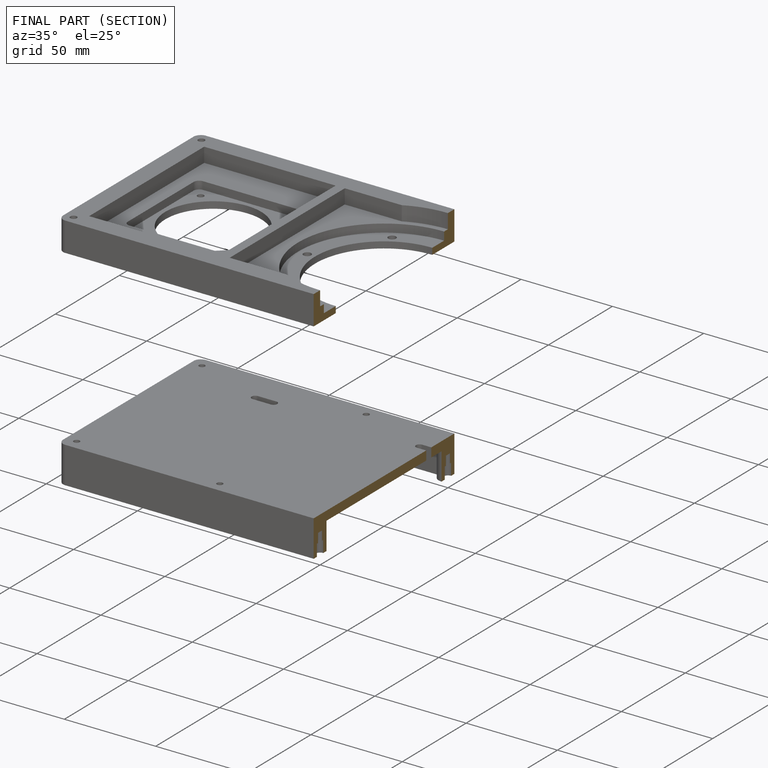
[diagram: finished part — half-section view (interior)]
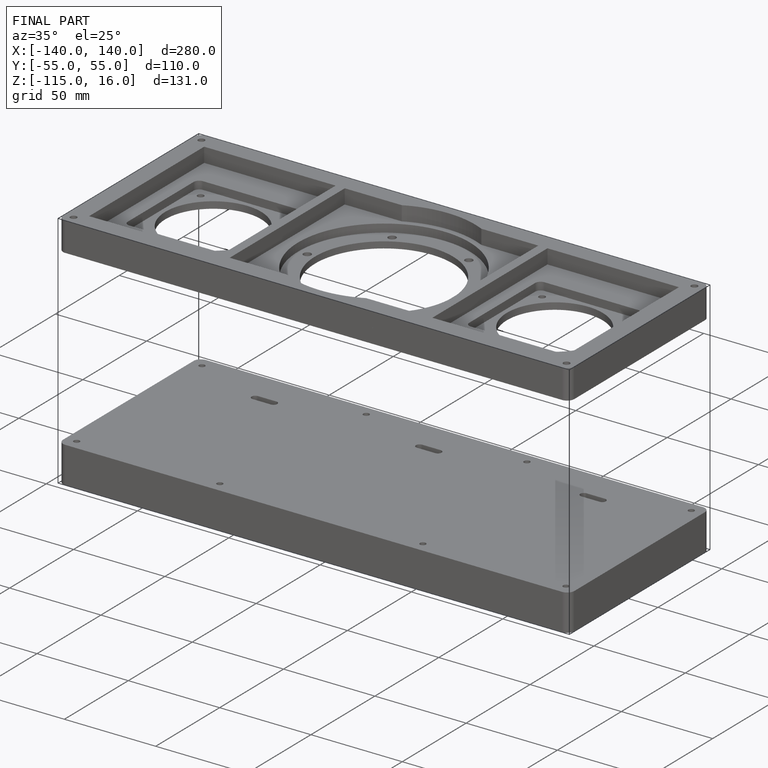
[diagram: finished part — iso view with bounding-box wireframe]
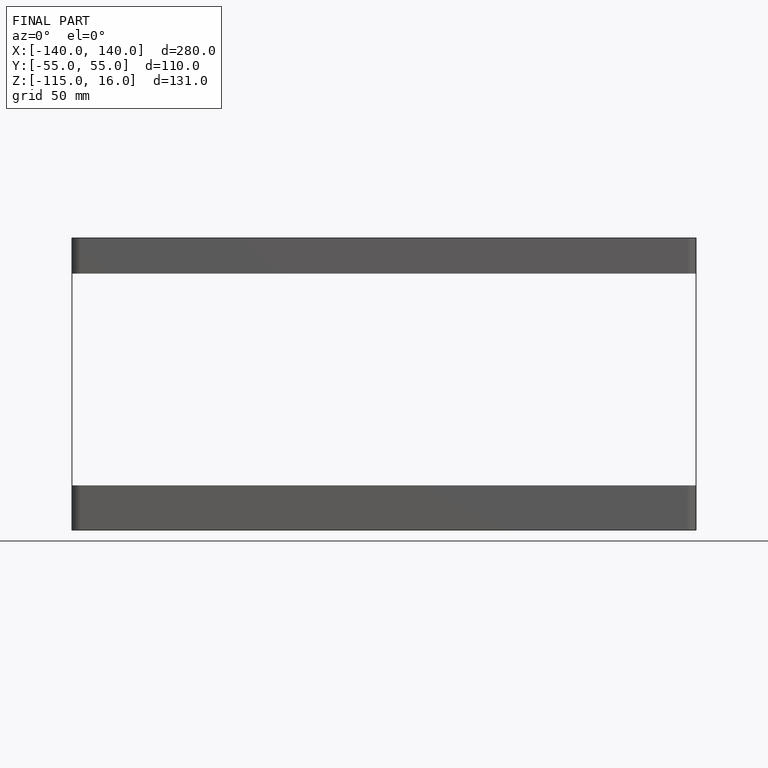
[diagram: finished part — front view with bounding-box wireframe]
